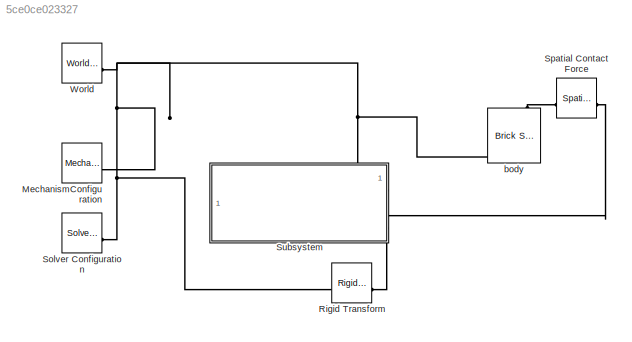
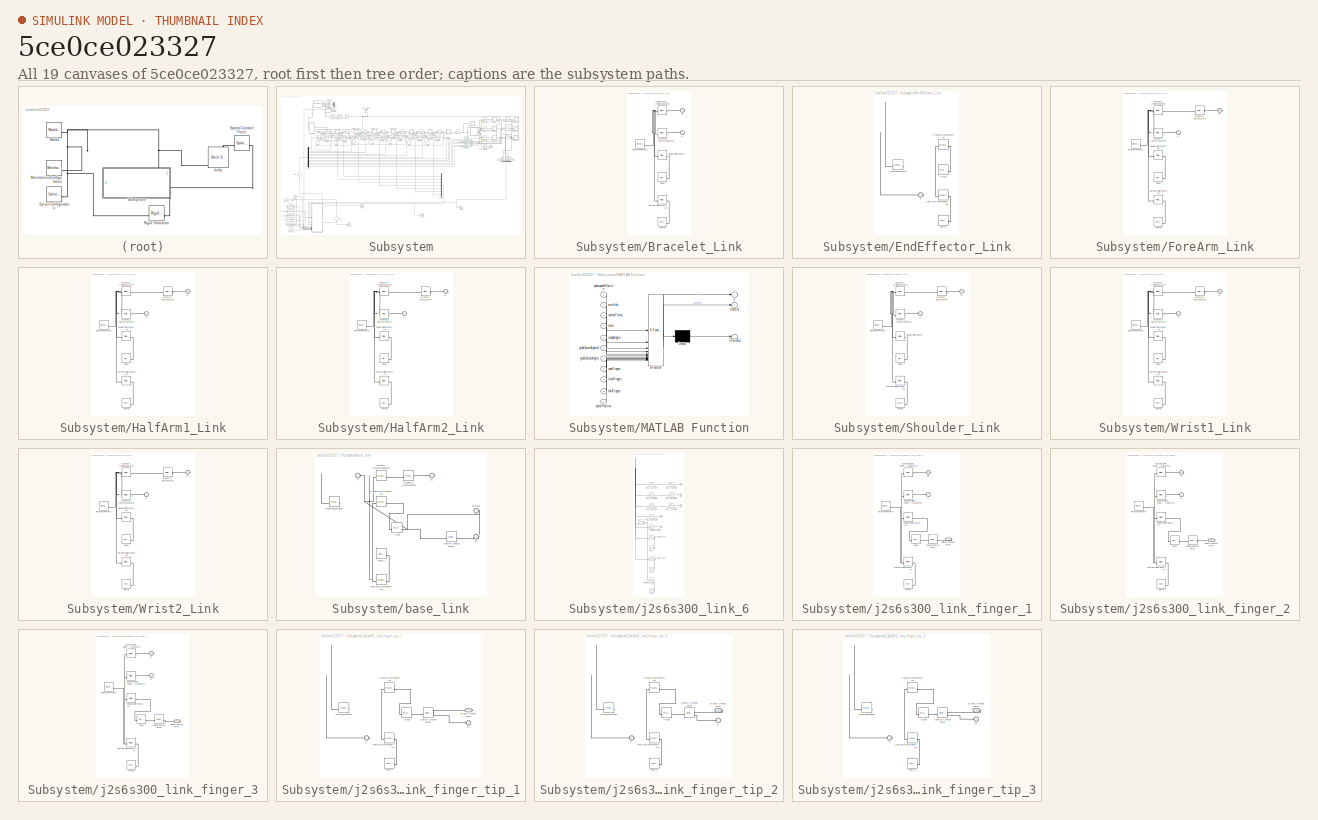
[diagram: thumbnail index - all 19 canvases of the model, root first then tree order]
MODEL slx_5ce0ce023327
KIND model
CONFIG AbsTol = auto
CONFIG EnableMultiTasking = off
CONFIG FixedStep = 0.01
CONFIG MaxStep = 0.01
CONFIG MinStep = auto
CONFIG RelTol = 1e-3
CONFIG SampleTimeConstraint = Unconstrained
CONFIG SolverName = VariableStepAuto
CONFIG StartTime = 0.0
CONFIG StopTime = 45
BLOCK [Reference] MechanismConfiguration  REF=sm_lib/Utilities/Mechanism
Configuration
  SourceBlock = sm_lib/Utilities/Mechanism\nConfiguration
  SourceType = Mechanism\nConfiguration
BLOCK [Reference] Rigid Transform  REF=sm_lib/Frames and
Transforms/Rigid
Transform
  SourceBlock = sm_lib/Frames and\nTransforms/Rigid\nTransform
  SourceType = Rigid\nTransform
BLOCK [Reference] Solver Configuration  REF=nesl_utility/Solver
Configuration
  SourceBlock = nesl_utility/Solver\nConfiguration
  SourceType = Solver\nConfiguration
BLOCK [Reference] Spatial Contact Force  REF=sm_lib/Forces and
Torques/Spatial
Contact Force
  SourceBlock = sm_lib/Forces and\nTorques/Spatial\nContact Force
  SourceType = Spatial\nContact Force
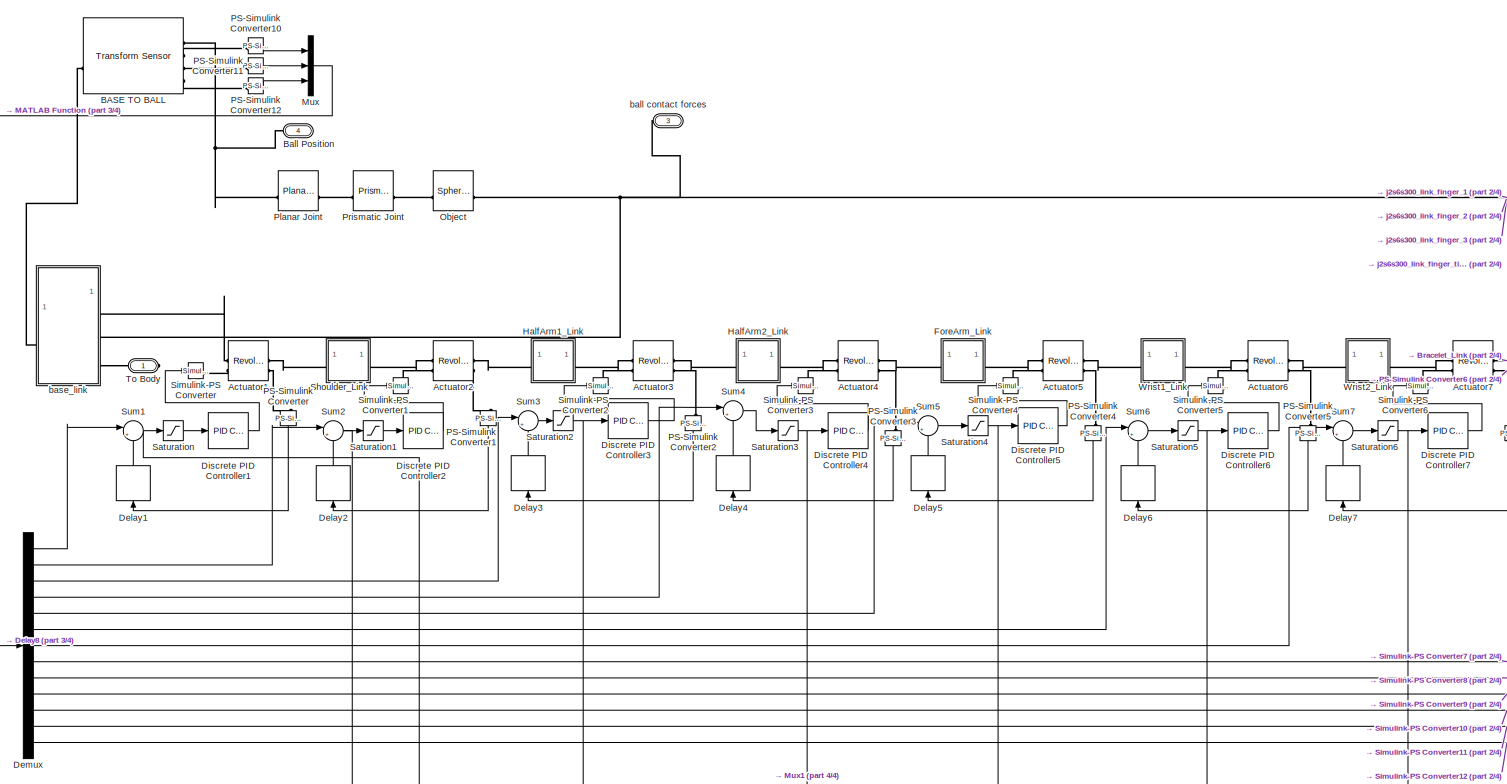
[diagram: Subsystem - part 1/4, top center region]
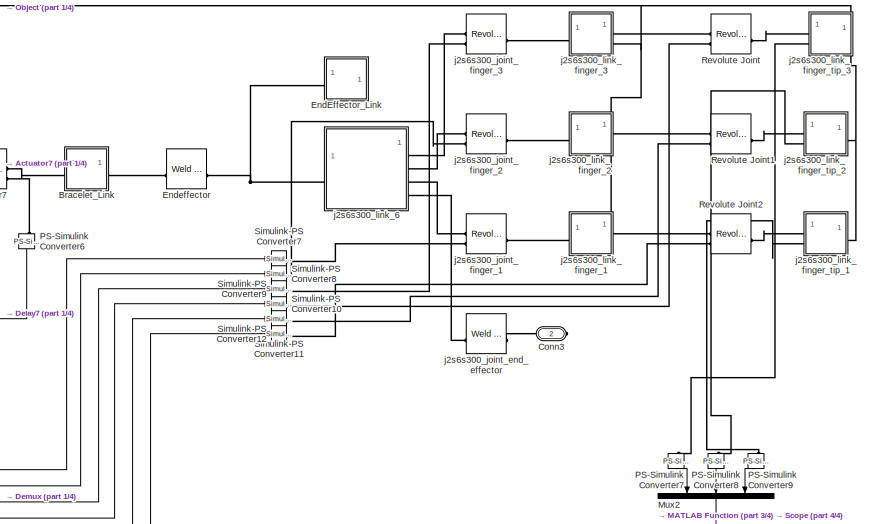
[diagram: Subsystem - part 2/4, top right region]
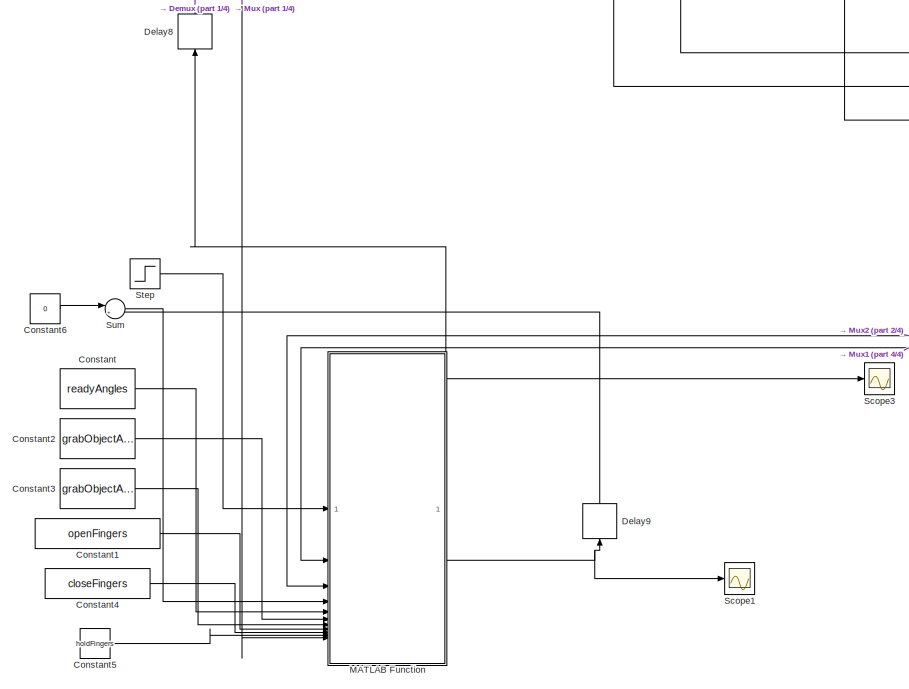
[diagram: Subsystem - part 3/4, bottom left region]
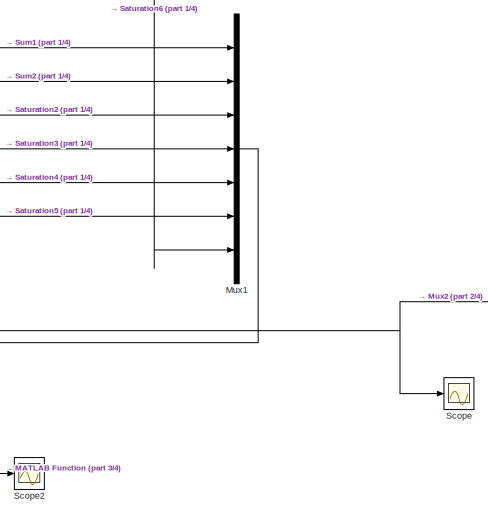
[diagram: Subsystem - part 4/4, bottom right region]
BLOCK [SubSystem] Subsystem
BLOCK [Reference] Subsystem/Actuator1  REF=sm_lib/Joints/Revolute Joint
  SourceBlock = sm_lib/Joints/Revolute Joint
  SourceType = Revolute Joint
BLOCK [Reference] Subsystem/Actuator2  REF=sm_lib/Joints/Revolute Joint
  SourceBlock = sm_lib/Joints/Revolute Joint
  SourceType = Revolute Joint
BLOCK [Reference] Subsystem/Actuator3  REF=sm_lib/Joints/Revolute Joint
  SourceBlock = sm_lib/Joints/Revolute Joint
  SourceType = Revolute Joint
BLOCK [Reference] Subsystem/Actuator4  REF=sm_lib/Joints/Revolute Joint
  SourceBlock = sm_lib/Joints/Revolute Joint
  SourceType = Revolute Joint
BLOCK [Reference] Subsystem/Actuator5  REF=sm_lib/Joints/Revolute Joint
  SourceBlock = sm_lib/Joints/Revolute Joint
  SourceType = Revolute Joint
BLOCK [Reference] Subsystem/Actuator6  REF=sm_lib/Joints/Revolute Joint
  SourceBlock = sm_lib/Joints/Revolute Joint
  SourceType = Revolute Joint
BLOCK [Reference] Subsystem/Actuator7  REF=sm_lib/Joints/Revolute Joint
  SourceBlock = sm_lib/Joints/Revolute Joint
  SourceType = Revolute Joint
BLOCK [Reference] Subsystem/BASE TO BALL  REF=sm_lib/Frames and
Transforms/Transform
Sensor
  SourceBlock = sm_lib/Frames and\nTransforms/Transform\nSensor
  SourceType = Transform\nSensor
BLOCK [PMIOPort] Subsystem/Ball Position
  Port = 4
  Side = Right
BLOCK [SubSystem] Subsystem/Bracelet_Link
BLOCK [Reference] Subsystem/Bracelet_Link/Actuator7_AxisInvTransform  REF=sm_lib/Frames and
Transforms/Rigid
Transform
  SourceBlock = sm_lib/Frames and\nTransforms/Rigid\nTransform
  SourceType = Rigid\nTransform
BLOCK [Reference] Subsystem/Bracelet_Link/Endeffector_OriginTransform  REF=sm_lib/Frames and
Transforms/Rigid
Transform
  SourceBlock = sm_lib/Frames and\nTransforms/Rigid\nTransform
  SourceType = Rigid\nTransform
BLOCK [PMIOPort] Subsystem/Bracelet_Link/F
  Side = Left
BLOCK [PMIOPort] Subsystem/Bracelet_Link/F1
  Port = 2
  Side = Right
BLOCK [Reference] Subsystem/Bracelet_Link/Inertia  REF=sm_lib/Body Elements/Inertia
  SourceBlock = sm_lib/Body Elements/Inertia
  SourceType = Inertia
BLOCK [Reference] Subsystem/Bracelet_Link/InertiaOriginTransform  REF=sm_lib/Frames and
Transforms/Rigid
Transform
  SourceBlock = sm_lib/Frames and\nTransforms/Rigid\nTransform
  SourceType = Rigid\nTransform
BLOCK [Reference] Subsystem/Bracelet_Link/ReferenceFrame  REF=sm_lib/Frames and
Transforms/Reference
Frame
  SourceBlock = sm_lib/Frames and\nTransforms/Reference\nFrame
  SourceType = Reference\nFrame
BLOCK [Reference] Subsystem/Bracelet_Link/Visual  REF=sm_lib/Body Elements/File Solid
  SourceBlock = sm_lib/Body Elements/File Solid
  SourceType = File Solid
BLOCK [Reference] Subsystem/Bracelet_Link/VisualOriginTransform  REF=sm_lib/Frames and
Transforms/Rigid
Transform
  SourceBlock = sm_lib/Frames and\nTransforms/Rigid\nTransform
  SourceType = Rigid\nTransform
BLOCK [PMIOPort] Subsystem/Conn3
  Port = 2
  Side = Right
BLOCK [Constant] Subsystem/Constant
  SampleTime = -1
  Value = readyAngles
BLOCK [Constant] Subsystem/Constant1
  SampleTime = -1
  Value = openFingers
BLOCK [Constant] Subsystem/Constant2
  SampleTime = -1
  Value = grabObjectAngles2
BLOCK [Constant] Subsystem/Constant3
  SampleTime = -1
  Value = grabObjectAngles
BLOCK [Constant] Subsystem/Constant4
  Value = closeFingers
BLOCK [Constant] Subsystem/Constant5
  Value = holdFingers
BLOCK [Constant] Subsystem/Constant6
  Value = 0
BLOCK [Delay] Subsystem/Delay1
  DelayLength = 1
  InitialCondition = 0
  InputPortMap = u0
  NameLocation = right
BLOCK [Delay] Subsystem/Delay2
  DelayLength = 1
  InitialCondition = 0
  InputPortMap = u0
  NameLocation = right
BLOCK [Delay] Subsystem/Delay3
  DelayLength = 1
  InitialCondition = 0
  InputPortMap = u0
  NameLocation = right
BLOCK [Delay] Subsystem/Delay4
  DelayLength = 1
  InitialCondition = 0
  InputPortMap = u0
  NameLocation = right
BLOCK [Delay] Subsystem/Delay5
  DelayLength = 1
  InitialCondition = 0
  InputPortMap = u0
  NameLocation = right
BLOCK [Delay] Subsystem/Delay6
  DelayLength = 1
  InitialCondition = 0
  InputPortMap = u0
  NameLocation = right
BLOCK [Delay] Subsystem/Delay7
  DelayLength = 1
  InitialCondition = 0
  InputPortMap = u0
  NameLocation = right
BLOCK [Delay] Subsystem/Delay8
  DelayLength = 1
  InitialCondition = 0
  InputPortMap = u0
  NameLocation = right
BLOCK [Delay] Subsystem/Delay9
  DelayLength = 1
  InitialCondition = 0
  InputPortMap = u0
  NameLocation = right
BLOCK [Demux] Subsystem/Demux
  Outputs = 13
BLOCK [Reference] Subsystem/Discrete PID Controller1  REF=slpidlib/PID Controller
  SourceBlock = slpidlib/PID Controller
  SourceType = PID 1dof
BLOCK [Reference] Subsystem/Discrete PID Controller2  REF=slpidlib/PID Controller
  SourceBlock = slpidlib/PID Controller
  SourceType = PID 1dof
BLOCK [Reference] Subsystem/Discrete PID Controller3  REF=slpidlib/PID Controller
  SourceBlock = slpidlib/PID Controller
  SourceType = PID 1dof
BLOCK [Reference] Subsystem/Discrete PID Controller4  REF=slpidlib/PID Controller
  SourceBlock = slpidlib/PID Controller
  SourceType = PID 1dof
BLOCK [Reference] Subsystem/Discrete PID Controller5  REF=slpidlib/PID Controller
  SourceBlock = slpidlib/PID Controller
  SourceType = PID 1dof
BLOCK [Reference] Subsystem/Discrete PID Controller6  REF=slpidlib/PID Controller
  SourceBlock = slpidlib/PID Controller
  SourceType = PID 1dof
BLOCK [Reference] Subsystem/Discrete PID Controller7  REF=slpidlib/PID Controller
  SourceBlock = slpidlib/PID Controller
  SourceType = PID 1dof
BLOCK [SubSystem] Subsystem/EndEffector_Link
BLOCK [PMIOPort] Subsystem/EndEffector_Link/F
  Side = Left
BLOCK [Reference] Subsystem/EndEffector_Link/Inertia  REF=sm_lib/Body Elements/Inertia
  SourceBlock = sm_lib/Body Elements/Inertia
  SourceType = Inertia
BLOCK [Reference] Subsystem/EndEffector_Link/InertiaOriginTransform  REF=sm_lib/Frames and
Transforms/Rigid
Transform
  SourceBlock = sm_lib/Frames and\nTransforms/Rigid\nTransform
  SourceType = Rigid\nTransform
BLOCK [Reference] Subsystem/EndEffector_Link/ReferenceFrame  REF=sm_lib/Frames and
Transforms/Reference
Frame
  SourceBlock = sm_lib/Frames and\nTransforms/Reference\nFrame
  SourceType = Reference\nFrame
BLOCK [Reference] Subsystem/EndEffector_Link/Visual  REF=sm_lib/Body Elements/File Solid
  SourceBlock = sm_lib/Body Elements/File Solid
  SourceType = File Solid
BLOCK [Reference] Subsystem/EndEffector_Link/VisualOriginTransform  REF=sm_lib/Frames and
Transforms/Rigid
Transform
  SourceBlock = sm_lib/Frames and\nTransforms/Rigid\nTransform
  SourceType = Rigid\nTransform
BLOCK [Reference] Subsystem/Endeffector  REF=sm_lib/Joints/Weld Joint
  SourceBlock = sm_lib/Joints/Weld Joint
  SourceType = Weld Joint
BLOCK [SubSystem] Subsystem/ForeArm_Link
BLOCK [Reference] Subsystem/ForeArm_Link/Actuator4_AxisInvTransform  REF=sm_lib/Frames and
Transforms/Rigid
Transform
  SourceBlock = sm_lib/Frames and\nTransforms/Rigid\nTransform
  SourceType = Rigid\nTransform
BLOCK [Reference] Subsystem/ForeArm_Link/Actuator5_AxisTransform  REF=sm_lib/Frames and
Transforms/Rigid
Transform
  SourceBlock = sm_lib/Frames and\nTransforms/Rigid\nTransform
  SourceType = Rigid\nTransform
BLOCK [Reference] Subsystem/ForeArm_Link/Actuator5_OriginTransform  REF=sm_lib/Frames and
Transforms/Rigid
Transform
  SourceBlock = sm_lib/Frames and\nTransforms/Rigid\nTransform
  SourceType = Rigid\nTransform
BLOCK [PMIOPort] Subsystem/ForeArm_Link/F
  Side = Left
BLOCK [PMIOPort] Subsystem/ForeArm_Link/F1
  Port = 2
  Side = Right
BLOCK [Reference] Subsystem/ForeArm_Link/Inertia  REF=sm_lib/Body Elements/Inertia
  SourceBlock = sm_lib/Body Elements/Inertia
  SourceType = Inertia
BLOCK [Reference] Subsystem/ForeArm_Link/InertiaOriginTransform  REF=sm_lib/Frames and
Transforms/Rigid
Transform
  SourceBlock = sm_lib/Frames and\nTransforms/Rigid\nTransform
  SourceType = Rigid\nTransform
BLOCK [Reference] Subsystem/ForeArm_Link/ReferenceFrame  REF=sm_lib/Frames and
Transforms/Reference
Frame
  SourceBlock = sm_lib/Frames and\nTransforms/Reference\nFrame
  SourceType = Reference\nFrame
BLOCK [Reference] Subsystem/ForeArm_Link/Visual  REF=sm_lib/Body Elements/File Solid
  SourceBlock = sm_lib/Body Elements/File Solid
  SourceType = File Solid
BLOCK [Reference] Subsystem/ForeArm_Link/VisualOriginTransform  REF=sm_lib/Frames and
Transforms/Rigid
Transform
  SourceBlock = sm_lib/Frames and\nTransforms/Rigid\nTransform
  SourceType = Rigid\nTransform
BLOCK [SubSystem] Subsystem/HalfArm1_Link
BLOCK [Reference] Subsystem/HalfArm1_Link/Actuator2_AxisInvTransform  REF=sm_lib/Frames and
Transforms/Rigid
Transform
  SourceBlock = sm_lib/Frames and\nTransforms/Rigid\nTransform
  SourceType = Rigid\nTransform
BLOCK [Reference] Subsystem/HalfArm1_Link/Actuator3_AxisTransform  REF=sm_lib/Frames and
Transforms/Rigid
Transform
  SourceBlock = sm_lib/Frames and\nTransforms/Rigid\nTransform
  SourceType = Rigid\nTransform
BLOCK [Reference] Subsystem/HalfArm1_Link/Actuator3_OriginTransform  REF=sm_lib/Frames and
Transforms/Rigid
Transform
  SourceBlock = sm_lib/Frames and\nTransforms/Rigid\nTransform
  SourceType = Rigid\nTransform
BLOCK [PMIOPort] Subsystem/HalfArm1_Link/F
  Side = Left
BLOCK [PMIOPort] Subsystem/HalfArm1_Link/F1
  Port = 2
  Side = Right
BLOCK [Reference] Subsystem/HalfArm1_Link/Inertia  REF=sm_lib/Body Elements/Inertia
  SourceBlock = sm_lib/Body Elements/Inertia
  SourceType = Inertia
BLOCK [Reference] Subsystem/HalfArm1_Link/InertiaOriginTransform  REF=sm_lib/Frames and
Transforms/Rigid
Transform
  SourceBlock = sm_lib/Frames and\nTransforms/Rigid\nTransform
  SourceType = Rigid\nTransform
BLOCK [Reference] Subsystem/HalfArm1_Link/ReferenceFrame  REF=sm_lib/Frames and
Transforms/Reference
Frame
  SourceBlock = sm_lib/Frames and\nTransforms/Reference\nFrame
  SourceType = Reference\nFrame
BLOCK [Reference] Subsystem/HalfArm1_Link/Visual  REF=sm_lib/Body Elements/File Solid
  SourceBlock = sm_lib/Body Elements/File Solid
  SourceType = File Solid
BLOCK [Reference] Subsystem/HalfArm1_Link/VisualOriginTransform  REF=sm_lib/Frames and
Transforms/Rigid
Transform
  SourceBlock = sm_lib/Frames and\nTransforms/Rigid\nTransform
  SourceType = Rigid\nTransform
BLOCK [SubSystem] Subsystem/HalfArm2_Link
BLOCK [Reference] Subsystem/HalfArm2_Link/Actuator3_AxisInvTransform  REF=sm_lib/Frames and
Transforms/Rigid
Transform
  SourceBlock = sm_lib/Frames and\nTransforms/Rigid\nTransform
  SourceType = Rigid\nTransform
BLOCK [Reference] Subsystem/HalfArm2_Link/Actuator4_AxisTransform  REF=sm_lib/Frames and
Transforms/Rigid
Transform
  SourceBlock = sm_lib/Frames and\nTransforms/Rigid\nTransform
  SourceType = Rigid\nTransform
BLOCK [Reference] Subsystem/HalfArm2_Link/Actuator4_OriginTransform  REF=sm_lib/Frames and
Transforms/Rigid
Transform
  SourceBlock = sm_lib/Frames and\nTransforms/Rigid\nTransform
  SourceType = Rigid\nTransform
BLOCK [PMIOPort] Subsystem/HalfArm2_Link/F
  Side = Left
BLOCK [PMIOPort] Subsystem/HalfArm2_Link/F1
  Port = 2
  Side = Right
BLOCK [Reference] Subsystem/HalfArm2_Link/Inertia  REF=sm_lib/Body Elements/Inertia
  SourceBlock = sm_lib/Body Elements/Inertia
  SourceType = Inertia
BLOCK [Reference] Subsystem/HalfArm2_Link/InertiaOriginTransform  REF=sm_lib/Frames and
Transforms/Rigid
Transform
  SourceBlock = sm_lib/Frames and\nTransforms/Rigid\nTransform
  SourceType = Rigid\nTransform
BLOCK [Reference] Subsystem/HalfArm2_Link/ReferenceFrame  REF=sm_lib/Frames and
Transforms/Reference
Frame
  SourceBlock = sm_lib/Frames and\nTransforms/Reference\nFrame
  SourceType = Reference\nFrame
BLOCK [Reference] Subsystem/HalfArm2_Link/Visual  REF=sm_lib/Body Elements/File Solid
  SourceBlock = sm_lib/Body Elements/File Solid
  SourceType = File Solid
BLOCK [Reference] Subsystem/HalfArm2_Link/VisualOriginTransform  REF=sm_lib/Frames and
Transforms/Rigid
Transform
  SourceBlock = sm_lib/Frames and\nTransforms/Rigid\nTransform
  SourceType = Rigid\nTransform
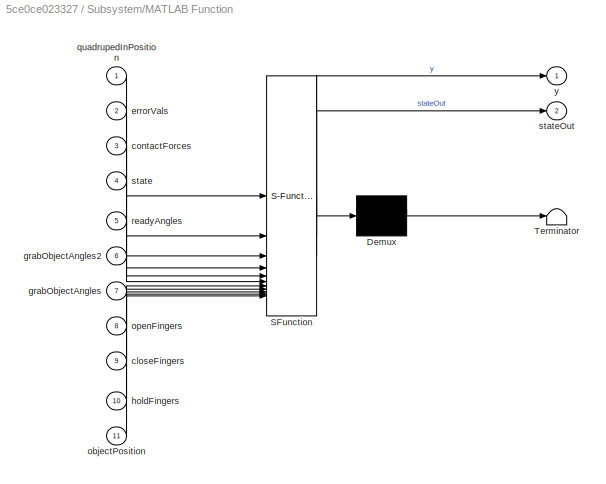
BLOCK [SubSystem] Subsystem/MATLAB Function
  ErrorFcn = Stateflow.Translate.translate
  PermitHierarchicalResolution = ExplicitOnly
  SFBlockType = MATLAB Function
  TreatAsAtomicUnit = on
BLOCK [Demux] Subsystem/MATLAB Function/ Demux 
  Outputs = 1
BLOCK [S-Function] Subsystem/MATLAB Function/ SFunction 
  EnableBusSupport = on
  FunctionName = sf_sfun
  PortCounts = [11 3]
  SFcnIsStateOwnerBlock = off
  SFunctionDeploymentMode = off
  Tag = Stateflow S-Function 2
BLOCK [Terminator] Subsystem/MATLAB Function/ Terminator 
BLOCK [Inport] Subsystem/MATLAB Function/closeFingers
  Port = 9
BLOCK [Inport] Subsystem/MATLAB Function/contactForces
  Port = 3
BLOCK [Inport] Subsystem/MATLAB Function/errorVals
  Port = 2
BLOCK [Inport] Subsystem/MATLAB Function/grabObjectAngles
  Port = 7
BLOCK [Inport] Subsystem/MATLAB Function/grabObjectAngles2
  Port = 6
BLOCK [Inport] Subsystem/MATLAB Function/holdFingers
  Port = 10
BLOCK [Inport] Subsystem/MATLAB Function/objectPosition
  Port = 11
BLOCK [Inport] Subsystem/MATLAB Function/openFingers
  Port = 8
BLOCK [Inport] Subsystem/MATLAB Function/quadrupedInPosition
BLOCK [Inport] Subsystem/MATLAB Function/readyAngles
  Port = 5
BLOCK [Inport] Subsystem/MATLAB Function/state
  Port = 4
BLOCK [Outport] Subsystem/MATLAB Function/stateOut
  Port = 2
BLOCK [Outport] Subsystem/MATLAB Function/y
BLOCK [Mux] Subsystem/Mux
  DisplayOption = bar
  Inputs = 3
BLOCK [Mux] Subsystem/Mux1
  DisplayOption = bar
  Inputs = 7
BLOCK [Mux] Subsystem/Mux2
  DisplayOption = bar
  Inputs = 3
BLOCK [Reference] Subsystem/Object  REF=sm_lib/Body Elements/Spherical Solid
  SourceBlock = sm_lib/Body Elements/Spherical Solid
  SourceType = Spherical Solid
BLOCK [Reference] Subsystem/PS-Simulink Converter  REF=nesl_utility/PS-Simulink
Converter
  NameLocation = left
  SourceBlock = nesl_utility/PS-Simulink\nConverter
  SourceType = PS-Simulink\nConverter
BLOCK [Reference] Subsystem/PS-Simulink Converter1  REF=nesl_utility/PS-Simulink
Converter
  NameLocation = left
  SourceBlock = nesl_utility/PS-Simulink\nConverter
  SourceType = PS-Simulink\nConverter
BLOCK [Reference] Subsystem/PS-Simulink Converter10  REF=nesl_utility/PS-Simulink
Converter
  SourceBlock = nesl_utility/PS-Simulink\nConverter
  SourceType = PS-Simulink\nConverter
BLOCK [Reference] Subsystem/PS-Simulink Converter11  REF=nesl_utility/PS-Simulink
Converter
  SourceBlock = nesl_utility/PS-Simulink\nConverter
  SourceType = PS-Simulink\nConverter
BLOCK [Reference] Subsystem/PS-Simulink Converter12  REF=nesl_utility/PS-Simulink
Converter
  SourceBlock = nesl_utility/PS-Simulink\nConverter
  SourceType = PS-Simulink\nConverter
BLOCK [Reference] Subsystem/PS-Simulink Converter2  REF=nesl_utility/PS-Simulink
Converter
  NameLocation = left
  SourceBlock = nesl_utility/PS-Simulink\nConverter
  SourceType = PS-Simulink\nConverter
BLOCK [Reference] Subsystem/PS-Simulink Converter3  REF=nesl_utility/PS-Simulink
Converter
  NameLocation = left
  SourceBlock = nesl_utility/PS-Simulink\nConverter
  SourceType = PS-Simulink\nConverter
BLOCK [Reference] Subsystem/PS-Simulink Converter4  REF=nesl_utility/PS-Simulink
Converter
  NameLocation = left
  SourceBlock = nesl_utility/PS-Simulink\nConverter
  SourceType = PS-Simulink\nConverter
BLOCK [Reference] Subsystem/PS-Simulink Converter5  REF=nesl_utility/PS-Simulink
Converter
  NameLocation = left
  SourceBlock = nesl_utility/PS-Simulink\nConverter
  SourceType = PS-Simulink\nConverter
BLOCK [Reference] Subsystem/PS-Simulink Converter6  REF=nesl_utility/PS-Simulink
Converter
  NameLocation = left
  SourceBlock = nesl_utility/PS-Simulink\nConverter
  SourceType = PS-Simulink\nConverter
BLOCK [Reference] Subsystem/PS-Simulink Converter7  REF=nesl_utility/PS-Simulink
Converter
  NameLocation = left
  SourceBlock = nesl_utility/PS-Simulink\nConverter
  SourceType = PS-Simulink\nConverter
BLOCK [Reference] Subsystem/PS-Simulink Converter8  REF=nesl_utility/PS-Simulink
Converter
  NameLocation = right
  SourceBlock = nesl_utility/PS-Simulink\nConverter
  SourceType = PS-Simulink\nConverter
BLOCK [Reference] Subsystem/PS-Simulink Converter9  REF=nesl_utility/PS-Simulink
Converter
  NameLocation = left
  SourceBlock = nesl_utility/PS-Simulink\nConverter
  SourceType = PS-Simulink\nConverter
BLOCK [Reference] Subsystem/Planar Joint  REF=sm_lib/Joints/Planar Joint
  SourceBlock = sm_lib/Joints/Planar Joint
  SourceType = Planar Joint
BLOCK [Reference] Subsystem/Prismatic Joint  REF=sm_lib/Joints/Prismatic
Joint
  SourceBlock = sm_lib/Joints/Prismatic\nJoint
  SourceType = Prismatic\nJoint
BLOCK [Reference] Subsystem/Revolute Joint  REF=sm_lib/Joints/Revolute Joint
  SourceBlock = sm_lib/Joints/Revolute Joint
  SourceType = Revolute Joint
BLOCK [Reference] Subsystem/Revolute Joint1  REF=sm_lib/Joints/Revolute Joint
  SourceBlock = sm_lib/Joints/Revolute Joint
  SourceType = Revolute Joint
BLOCK [Reference] Subsystem/Revolute Joint2  REF=sm_lib/Joints/Revolute Joint
  SourceBlock = sm_lib/Joints/Revolute Joint
  SourceType = Revolute Joint
BLOCK [Saturate] Subsystem/Saturation
BLOCK [Saturate] Subsystem/Saturation1
BLOCK [Saturate] Subsystem/Saturation2
BLOCK [Saturate] Subsystem/Saturation3
BLOCK [Saturate] Subsystem/Saturation4
BLOCK [Saturate] Subsystem/Saturation5
BLOCK [Saturate] Subsystem/Saturation6
BLOCK [Scope] Subsystem/Scope
  Floating = off
  NumInputPorts = 1
  ScopeSpecificationString = Simulink.scopes.TimeScopeBlockCfg('CurrentConfiguration', extmgr.ConfigurationSet(extmgr.Configuration('Core','General UI',true),extmgr.Configuration('Core','Source UI',true),extmgr.Configuration('Sources','WiredSimulink',true),extmgr.Configuration('Visuals','Time Domain',true,'SerializedDisplays',{struct('MinYLimReal','-31.15334','MaxYLimReal','280.38008','YLabelReal','','MinYLimMag','0.00000','M...<+1446ch>
BLOCK [Scope] Subsystem/Scope1
  Floating = off
  NumInputPorts = 1
  ScopeSpecificationString = Simulink.scopes.TimeScopeBlockCfg('CurrentConfiguration', extmgr.ConfigurationSet(extmgr.Configuration('Core','General UI',true),extmgr.Configuration('Core','Source UI',true),extmgr.Configuration('Sources','WiredSimulink',true,'DataLoggingVariableName','ScopeData1'),extmgr.Configuration('Visuals','Time Domain',true,'SerializedDisplays',{struct('MinYLimReal','0.93562','MaxYLimReal','3.06075','YLabe...<+1433ch>
BLOCK [Scope] Subsystem/Scope2
  Floating = off
  NumInputPorts = 1
  ScopeSpecificationString = Simulink.scopes.TimeScopeBlockCfg('CurrentConfiguration', extmgr.ConfigurationSet(extmgr.Configuration('Core','General UI',true),extmgr.Configuration('Core','Source UI',true),extmgr.Configuration('Sources','WiredSimulink',true,'DataLoggingVariableName','ScopeData2'),extmgr.Configuration('Visuals','Time Domain',true,'SerializedDisplays',{struct('MinYLimReal','-0.36305','MaxYLimReal','0.34703','YLab...<+1490ch>
BLOCK [Scope] Subsystem/Scope3
  Floating = off
  NumInputPorts = 1
  ScopeSpecificationString = Simulink.scopes.TimeScopeBlockCfg('CurrentConfiguration', extmgr.ConfigurationSet(extmgr.Configuration('Core','General UI',true),extmgr.Configuration('Core','Source UI',true),extmgr.Configuration('Sources','WiredSimulink',true,'DataLoggingVariableName','ScopeData3'),extmgr.Configuration('Visuals','Time Domain',true),extmgr.Configuration('Tools','Plot Navigation',true),extmgr.Configuration('Tools',...<+40ch>
BLOCK [SubSystem] Subsystem/Shoulder_Link
BLOCK [Reference] Subsystem/Shoulder_Link/Actuator1_AxisInvTransform  REF=sm_lib/Frames and
Transforms/Rigid
Transform
  SourceBlock = sm_lib/Frames and\nTransforms/Rigid\nTransform
  SourceType = Rigid\nTransform
BLOCK [Reference] Subsystem/Shoulder_Link/Actuator2_AxisTransform  REF=sm_lib/Frames and
Transforms/Rigid
Transform
  SourceBlock = sm_lib/Frames and\nTransforms/Rigid\nTransform
  SourceType = Rigid\nTransform
BLOCK [Reference] Subsystem/Shoulder_Link/Actuator2_OriginTransform  REF=sm_lib/Frames and
Transforms/Rigid
Transform
  SourceBlock = sm_lib/Frames and\nTransforms/Rigid\nTransform
  SourceType = Rigid\nTransform
BLOCK [PMIOPort] Subsystem/Shoulder_Link/F
  Side = Left
BLOCK [PMIOPort] Subsystem/Shoulder_Link/F1
  Port = 2
  Side = Right
BLOCK [Reference] Subsystem/Shoulder_Link/Inertia  REF=sm_lib/Body Elements/Inertia
  SourceBlock = sm_lib/Body Elements/Inertia
  SourceType = Inertia
BLOCK [Reference] Subsystem/Shoulder_Link/InertiaOriginTransform  REF=sm_lib/Frames and
Transforms/Rigid
Transform
  SourceBlock = sm_lib/Frames and\nTransforms/Rigid\nTransform
  SourceType = Rigid\nTransform
BLOCK [Reference] Subsystem/Shoulder_Link/ReferenceFrame  REF=sm_lib/Frames and
Transforms/Reference
Frame
  SourceBlock = sm_lib/Frames and\nTransforms/Reference\nFrame
  SourceType = Reference\nFrame
BLOCK [Reference] Subsystem/Shoulder_Link/Visual  REF=sm_lib/Body Elements/File Solid
  SourceBlock = sm_lib/Body Elements/File Solid
  SourceType = File Solid
BLOCK [Reference] Subsystem/Shoulder_Link/VisualOriginTransform  REF=sm_lib/Frames and
Transforms/Rigid
Transform
  SourceBlock = sm_lib/Frames and\nTransforms/Rigid\nTransform
  SourceType = Rigid\nTransform
BLOCK [Reference] Subsystem/Simulink-PS Converter  REF=nesl_utility/Simulink-PS
Converter
  SourceBlock = nesl_utility/Simulink-PS\nConverter
  SourceType = Simulink-PS\nConverter
BLOCK [Reference] Subsystem/Simulink-PS Converter1  REF=nesl_utility/Simulink-PS
Converter
  SourceBlock = nesl_utility/Simulink-PS\nConverter
  SourceType = Simulink-PS\nConverter
BLOCK [Reference] Subsystem/Simulink-PS Converter10  REF=nesl_utility/Simulink-PS
Converter
  SourceBlock = nesl_utility/Simulink-PS\nConverter
  SourceType = Simulink-PS\nConverter
BLOCK [Reference] Subsystem/Simulink-PS Converter11  REF=nesl_utility/Simulink-PS
Converter
  SourceBlock = nesl_utility/Simulink-PS\nConverter
  SourceType = Simulink-PS\nConverter
BLOCK [Reference] Subsystem/Simulink-PS Converter12  REF=nesl_utility/Simulink-PS
Converter
  SourceBlock = nesl_utility/Simulink-PS\nConverter
  SourceType = Simulink-PS\nConverter
BLOCK [Reference] Subsystem/Simulink-PS Converter2  REF=nesl_utility/Simulink-PS
Converter
  SourceBlock = nesl_utility/Simulink-PS\nConverter
  SourceType = Simulink-PS\nConverter
BLOCK [Reference] Subsystem/Simulink-PS Converter3  REF=nesl_utility/Simulink-PS
Converter
  SourceBlock = nesl_utility/Simulink-PS\nConverter
  SourceType = Simulink-PS\nConverter
BLOCK [Reference] Subsystem/Simulink-PS Converter4  REF=nesl_utility/Simulink-PS
Converter
  SourceBlock = nesl_utility/Simulink-PS\nConverter
  SourceType = Simulink-PS\nConverter
BLOCK [Reference] Subsystem/Simulink-PS Converter5  REF=nesl_utility/Simulink-PS
Converter
  SourceBlock = nesl_utility/Simulink-PS\nConverter
  SourceType = Simulink-PS\nConverter
BLOCK [Reference] Subsystem/Simulink-PS Converter6  REF=nesl_utility/Simulink-PS
Converter
  SourceBlock = nesl_utility/Simulink-PS\nConverter
  SourceType = Simulink-PS\nConverter
BLOCK [Reference] Subsystem/Simulink-PS Converter7  REF=nesl_utility/Simulink-PS
Converter
  SourceBlock = nesl_utility/Simulink-PS\nConverter
  SourceType = Simulink-PS\nConverter
BLOCK [Reference] Subsystem/Simulink-PS Converter8  REF=nesl_utility/Simulink-PS
Converter
  SourceBlock = nesl_utility/Simulink-PS\nConverter
  SourceType = Simulink-PS\nConverter
BLOCK [Reference] Subsystem/Simulink-PS Converter9  REF=nesl_utility/Simulink-PS
Converter
  SourceBlock = nesl_utility/Simulink-PS\nConverter
  SourceType = Simulink-PS\nConverter
BLOCK [Step] Subsystem/Step
  SampleTime = 0
BLOCK [Sum] Subsystem/Sum
  Inputs = |++
BLOCK [Sum] Subsystem/Sum1
  Inputs = |+-
BLOCK [Sum] Subsystem/Sum2
  Inputs = |+-
BLOCK [Sum] Subsystem/Sum3
  Inputs = |+-
BLOCK [Sum] Subsystem/Sum4
  Inputs = |+-
BLOCK [Sum] Subsystem/Sum5
  Inputs = |+-
BLOCK [Sum] Subsystem/Sum6
  Inputs = |+-
BLOCK [Sum] Subsystem/Sum7
  Inputs = |+-
BLOCK [PMIOPort] Subsystem/To Body
  Side = Right
BLOCK [SubSystem] Subsystem/Wrist1_Link
BLOCK [Reference] Subsystem/Wrist1_Link/Actuator5_AxisInvTransform  REF=sm_lib/Frames and
Transforms/Rigid
Transform
  SourceBlock = sm_lib/Frames and\nTransforms/Rigid\nTransform
  SourceType = Rigid\nTransform
BLOCK [Reference] Subsystem/Wrist1_Link/Actuator6_AxisTransform  REF=sm_lib/Frames and
Transforms/Rigid
Transform
  SourceBlock = sm_lib/Frames and\nTransforms/Rigid\nTransform
  SourceType = Rigid\nTransform
BLOCK [Reference] Subsystem/Wrist1_Link/Actuator6_OriginTransform  REF=sm_lib/Frames and
Transforms/Rigid
Transform
  SourceBlock = sm_lib/Frames and\nTransforms/Rigid\nTransform
  SourceType = Rigid\nTransform
BLOCK [PMIOPort] Subsystem/Wrist1_Link/F
  Side = Left
BLOCK [PMIOPort] Subsystem/Wrist1_Link/F1
  Port = 2
  Side = Right
BLOCK [Reference] Subsystem/Wrist1_Link/Inertia  REF=sm_lib/Body Elements/Inertia
  SourceBlock = sm_lib/Body Elements/Inertia
  SourceType = Inertia
BLOCK [Reference] Subsystem/Wrist1_Link/InertiaOriginTransform  REF=sm_lib/Frames and
Transforms/Rigid
Transform
  SourceBlock = sm_lib/Frames and\nTransforms/Rigid\nTransform
  SourceType = Rigid\nTransform
BLOCK [Reference] Subsystem/Wrist1_Link/ReferenceFrame  REF=sm_lib/Frames and
Transforms/Reference
Frame
  SourceBlock = sm_lib/Frames and\nTransforms/Reference\nFrame
  SourceType = Reference\nFrame
BLOCK [Reference] Subsystem/Wrist1_Link/Visual  REF=sm_lib/Body Elements/File Solid
  SourceBlock = sm_lib/Body Elements/File Solid
  SourceType = File Solid
BLOCK [Reference] Subsystem/Wrist1_Link/VisualOriginTransform  REF=sm_lib/Frames and
Transforms/Rigid
Transform
  SourceBlock = sm_lib/Frames and\nTransforms/Rigid\nTransform
  SourceType = Rigid\nTransform
BLOCK [SubSystem] Subsystem/Wrist2_Link
BLOCK [Reference] Subsystem/Wrist2_Link/Actuator6_AxisInvTransform  REF=sm_lib/Frames and
Transforms/Rigid
Transform
  SourceBlock = sm_lib/Frames and\nTransforms/Rigid\nTransform
  SourceType = Rigid\nTransform
BLOCK [Reference] Subsystem/Wrist2_Link/Actuator7_AxisTransform  REF=sm_lib/Frames and
Transforms/Rigid
Transform
  SourceBlock = sm_lib/Frames and\nTransforms/Rigid\nTransform
  SourceType = Rigid\nTransform
BLOCK [Reference] Subsystem/Wrist2_Link/Actuator7_OriginTransform  REF=sm_lib/Frames and
Transforms/Rigid
Transform
  SourceBlock = sm_lib/Frames and\nTransforms/Rigid\nTransform
  SourceType = Rigid\nTransform
BLOCK [PMIOPort] Subsystem/Wrist2_Link/F
  Side = Left
BLOCK [PMIOPort] Subsystem/Wrist2_Link/F1
  Port = 2
  Side = Right
BLOCK [Reference] Subsystem/Wrist2_Link/Inertia  REF=sm_lib/Body Elements/Inertia
  SourceBlock = sm_lib/Body Elements/Inertia
  SourceType = Inertia
BLOCK [Reference] Subsystem/Wrist2_Link/InertiaOriginTransform  REF=sm_lib/Frames and
Transforms/Rigid
Transform
  SourceBlock = sm_lib/Frames and\nTransforms/Rigid\nTransform
  SourceType = Rigid\nTransform
BLOCK [Reference] Subsystem/Wrist2_Link/ReferenceFrame  REF=sm_lib/Frames and
Transforms/Reference
Frame
  SourceBlock = sm_lib/Frames and\nTransforms/Reference\nFrame
  SourceType = Reference\nFrame
BLOCK [Reference] Subsystem/Wrist2_Link/Visual  REF=sm_lib/Body Elements/File Solid
  SourceBlock = sm_lib/Body Elements/File Solid
  SourceType = File Solid
BLOCK [Reference] Subsystem/Wrist2_Link/VisualOriginTransform  REF=sm_lib/Frames and
Transforms/Rigid
Transform
  SourceBlock = sm_lib/Frames and\nTransforms/Rigid\nTransform
  SourceType = Rigid\nTransform
BLOCK [PMIOPort] Subsystem/ball contact forces
  Port = 3
  Side = Right
BLOCK [SubSystem] Subsystem/base_link
BLOCK [Reference] Subsystem/base_link/Actuator1_AxisTransform  REF=sm_lib/Frames and
Transforms/Rigid
Transform
  SourceBlock = sm_lib/Frames and\nTransforms/Rigid\nTransform
  SourceType = Rigid\nTransform
BLOCK [Reference] Subsystem/base_link/Actuator1_OriginTransform  REF=sm_lib/Frames and
Transforms/Rigid
Transform
  SourceBlock = sm_lib/Frames and\nTransforms/Rigid\nTransform
  SourceType = Rigid\nTransform
BLOCK [PMIOPort] Subsystem/base_link/F
  Side = Left
BLOCK [PMIOPort] Subsystem/base_link/F1
  Port = 2
  Side = Right
BLOCK [PMIOPort] Subsystem/base_link/F2
  Port = 3
  Side = Right
BLOCK [Reference] Subsystem/base_link/Inertia  REF=sm_lib/Body Elements/Inertia
  SourceBlock = sm_lib/Body Elements/Inertia
  SourceType = Inertia
BLOCK [Reference] Subsystem/base_link/InertiaOriginTransform  REF=sm_lib/Frames and
Transforms/Rigid
Transform
  SourceBlock = sm_lib/Frames and\nTransforms/Rigid\nTransform
  SourceType = Rigid\nTransform
BLOCK [Reference] Subsystem/base_link/ReferenceFrame  REF=sm_lib/Frames and
Transforms/Reference
Frame
  SourceBlock = sm_lib/Frames and\nTransforms/Reference\nFrame
  SourceType = Reference\nFrame
BLOCK [Reference] Subsystem/base_link/Spatial Contact Force1  REF=sm_lib/Forces and
Torques/Spatial
Contact Force
  SourceBlock = sm_lib/Forces and\nTorques/Spatial\nContact Force
  SourceType = Spatial\nContact Force
BLOCK [PMIOPort] Subsystem/base_link/To Body
  Port = 4
  Side = Right
BLOCK [Reference] Subsystem/base_link/Visual  REF=sm_lib/Body Elements/File Solid
  SourceBlock = sm_lib/Body Elements/File Solid
  SourceType = File Solid
BLOCK [Reference] Subsystem/base_link/VisualOriginTransform  REF=sm_lib/Frames and
Transforms/Rigid
Transform
  SourceBlock = sm_lib/Frames and\nTransforms/Rigid\nTransform
  SourceType = Rigid\nTransform
BLOCK [Reference] Subsystem/j2s6s300_joint_end_effector  REF=sm_lib/Joints/Weld Joint
  SourceBlock = sm_lib/Joints/Weld Joint
  SourceType = Weld Joint
BLOCK [Reference] Subsystem/j2s6s300_joint_finger_1  REF=sm_lib/Joints/Revolute Joint
  SourceBlock = sm_lib/Joints/Revolute Joint
  SourceType = Revolute Joint
BLOCK [Reference] Subsystem/j2s6s300_joint_finger_2  REF=sm_lib/Joints/Revolute Joint
  SourceBlock = sm_lib/Joints/Revolute Joint
  SourceType = Revolute Joint
BLOCK [Reference] Subsystem/j2s6s300_joint_finger_3  REF=sm_lib/Joints/Revolute Joint
  SourceBlock = sm_lib/Joints/Revolute Joint
  SourceType = Revolute Joint
BLOCK [SubSystem] Subsystem/j2s6s300_link_6
BLOCK [PMIOPort] Subsystem/j2s6s300_link_6/F
  Side = Left
BLOCK [PMIOPort] Subsystem/j2s6s300_link_6/F1
  Port = 5
  Side = Right
BLOCK [PMIOPort] Subsystem/j2s6s300_link_6/F2
  Port = 4
  Side = Right
BLOCK [PMIOPort] Subsystem/j2s6s300_link_6/F3
  Port = 3
  Side = Right
BLOCK [PMIOPort] Subsystem/j2s6s300_link_6/F4
  Port = 2
  Side = Right
BLOCK [Reference] Subsystem/j2s6s300_link_6/Inertia  REF=sm_lib/Body Elements/Inertia
  SourceBlock = sm_lib/Body Elements/Inertia
  SourceType = Inertia
BLOCK [Reference] Subsystem/j2s6s300_link_6/InertiaOriginTransform  REF=sm_lib/Frames and
Transforms/Rigid
Transform
  SourceBlock = sm_lib/Frames and\nTransforms/Rigid\nTransform
  SourceType = Rigid\nTransform
BLOCK [Reference] Subsystem/j2s6s300_link_6/ReferenceFrame  REF=sm_lib/Frames and
Transforms/Reference
Frame
  SourceBlock = sm_lib/Frames and\nTransforms/Reference\nFrame
  SourceType = Reference\nFrame
BLOCK [Reference] Subsystem/j2s6s300_link_6/Visual  REF=sm_lib/Body Elements/File Solid
  SourceBlock = sm_lib/Body Elements/File Solid
  SourceType = File Solid
BLOCK [Reference] Subsystem/j2s6s300_link_6/Visual1  REF=sm_lib/Body Elements/File Solid
  SourceBlock = sm_lib/Body Elements/File Solid
  SourceType = File Solid
BLOCK [Reference] Subsystem/j2s6s300_link_6/VisualOrigin1Transform  REF=sm_lib/Frames and
Transforms/Rigid
Transform
  SourceBlock = sm_lib/Frames and\nTransforms/Rigid\nTransform
  SourceType = Rigid\nTransform
BLOCK [Reference] Subsystem/j2s6s300_link_6/VisualOriginTransform  REF=sm_lib/Frames and
Transforms/Rigid
Transform
  SourceBlock = sm_lib/Frames and\nTransforms/Rigid\nTransform
  SourceType = Rigid\nTransform
BLOCK [Reference] Subsystem/j2s6s300_link_6/j2s6s300_joint_6_AxisInvTransform  REF=sm_lib/Frames and
Transforms/Rigid
Transform
  SourceBlock = sm_lib/Frames and\nTransforms/Rigid\nTransform
  SourceType = Rigid\nTransform
BLOCK [Reference] Subsystem/j2s6s300_link_6/j2s6s300_joint_end_effector_OriginTransform  REF=sm_lib/Frames and
Transforms/Rigid
Transform
  SourceBlock = sm_lib/Frames and\nTransforms/Rigid\nTransform
  SourceType = Rigid\nTransform
BLOCK [Reference] Subsystem/j2s6s300_link_6/j2s6s300_joint_finger_1_AxisTransform  REF=sm_lib/Frames and
Transforms/Rigid
Transform
  SourceBlock = sm_lib/Frames and\nTransforms/Rigid\nTransform
  SourceType = Rigid\nTransform
BLOCK [Reference] Subsystem/j2s6s300_link_6/j2s6s300_joint_finger_1_OriginTransform  REF=sm_lib/Frames and
Transforms/Rigid
Transform
  SourceBlock = sm_lib/Frames and\nTransforms/Rigid\nTransform
  SourceType = Rigid\nTransform
BLOCK [Reference] Subsystem/j2s6s300_link_6/j2s6s300_joint_finger_2_AxisTransform  REF=sm_lib/Frames and
Transforms/Rigid
Transform
  SourceBlock = sm_lib/Frames and\nTransforms/Rigid\nTransform
  SourceType = Rigid\nTransform
BLOCK [Reference] Subsystem/j2s6s300_link_6/j2s6s300_joint_finger_2_OriginTransform  REF=sm_lib/Frames and
Transforms/Rigid
Transform
  SourceBlock = sm_lib/Frames and\nTransforms/Rigid\nTransform
  SourceType = Rigid\nTransform
BLOCK [Reference] Subsystem/j2s6s300_link_6/j2s6s300_joint_finger_3_AxisTransform  REF=sm_lib/Frames and
Transforms/Rigid
Transform
  SourceBlock = sm_lib/Frames and\nTransforms/Rigid\nTransform
  SourceType = Rigid\nTransform
BLOCK [Reference] Subsystem/j2s6s300_link_6/j2s6s300_joint_finger_3_OriginTransform  REF=sm_lib/Frames and
Transforms/Rigid
Transform
  SourceBlock = sm_lib/Frames and\nTransforms/Rigid\nTransform
  SourceType = Rigid\nTransform
BLOCK [SubSystem] Subsystem/j2s6s300_link_finger_1
BLOCK [PMIOPort] Subsystem/j2s6s300_link_finger_1/Block1 Contact Force
  Port = 3
  Side = Right
BLOCK [PMIOPort] Subsystem/j2s6s300_link_finger_1/F
  Side = Left
BLOCK [PMIOPort] Subsystem/j2s6s300_link_finger_1/F1
  Port = 2
  Side = Right
BLOCK [Reference] Subsystem/j2s6s300_link_finger_1/Inertia  REF=sm_lib/Body Elements/Inertia
  SourceBlock = sm_lib/Body Elements/Inertia
  SourceType = Inertia
BLOCK [Reference] Subsystem/j2s6s300_link_finger_1/InertiaOriginTransform  REF=sm_lib/Frames and
Transforms/Rigid
Transform
  SourceBlock = sm_lib/Frames and\nTransforms/Rigid\nTransform
  SourceType = Rigid\nTransform
BLOCK [Reference] Subsystem/j2s6s300_link_finger_1/ReferenceFrame  REF=sm_lib/Frames and
Transforms/Reference
Frame
  SourceBlock = sm_lib/Frames and\nTransforms/Reference\nFrame
  SourceType = Reference\nFrame
BLOCK [Reference] Subsystem/j2s6s300_link_finger_1/Spatial Contact Force  REF=sm_lib/Forces and
Torques/Spatial
Contact Force
  SourceBlock = sm_lib/Forces and\nTorques/Spatial\nContact Force
  SourceType = Spatial\nContact Force
BLOCK [Reference] Subsystem/j2s6s300_link_finger_1/Visual  REF=sm_lib/Body Elements/File Solid
  SourceBlock = sm_lib/Body Elements/File Solid
  SourceType = File Solid
BLOCK [Reference] Subsystem/j2s6s300_link_finger_1/VisualOriginTransform  REF=sm_lib/Frames and
Transforms/Rigid
Transform
  SourceBlock = sm_lib/Frames and\nTransforms/Rigid\nTransform
  SourceType = Rigid\nTransform
BLOCK [Reference] Subsystem/j2s6s300_link_finger_1/j2s6s300_joint_finger_1_AxisInvTransform  REF=sm_lib/Frames and
Transforms/Rigid
Transform
  SourceBlock = sm_lib/Frames and\nTransforms/Rigid\nTransform
  SourceType = Rigid\nTransform
BLOCK [Reference] Subsystem/j2s6s300_link_finger_1/j2s6s300_joint_finger_tip_1_OriginTransform  REF=sm_lib/Frames and
Transforms/Rigid
Transform
  SourceBlock = sm_lib/Frames and\nTransforms/Rigid\nTransform
  SourceType = Rigid\nTransform
BLOCK [SubSystem] Subsystem/j2s6s300_link_finger_2
BLOCK [PMIOPort] Subsystem/j2s6s300_link_finger_2/Block1 Contact Force
  Port = 3
  Side = Right
BLOCK [PMIOPort] Subsystem/j2s6s300_link_finger_2/F
  Side = Left
BLOCK [PMIOPort] Subsystem/j2s6s300_link_finger_2/F1
  Port = 2
  Side = Right
BLOCK [Reference] Subsystem/j2s6s300_link_finger_2/Inertia  REF=sm_lib/Body Elements/Inertia
  SourceBlock = sm_lib/Body Elements/Inertia
  SourceType = Inertia
BLOCK [Reference] Subsystem/j2s6s300_link_finger_2/InertiaOriginTransform  REF=sm_lib/Frames and
Transforms/Rigid
Transform
  SourceBlock = sm_lib/Frames and\nTransforms/Rigid\nTransform
  SourceType = Rigid\nTransform
BLOCK [Reference] Subsystem/j2s6s300_link_finger_2/ReferenceFrame  REF=sm_lib/Frames and
Transforms/Reference
Frame
  SourceBlock = sm_lib/Frames and\nTransforms/Reference\nFrame
  SourceType = Reference\nFrame
BLOCK [Reference] Subsystem/j2s6s300_link_finger_2/Spatial Contact Force  REF=sm_lib/Forces and
Torques/Spatial
Contact Force
  SourceBlock = sm_lib/Forces and\nTorques/Spatial\nContact Force
  SourceType = Spatial\nContact Force
BLOCK [Reference] Subsystem/j2s6s300_link_finger_2/Visual  REF=sm_lib/Body Elements/File Solid
  SourceBlock = sm_lib/Body Elements/File Solid
  SourceType = File Solid
BLOCK [Reference] Subsystem/j2s6s300_link_finger_2/VisualOriginTransform  REF=sm_lib/Frames and
Transforms/Rigid
Transform
  SourceBlock = sm_lib/Frames and\nTransforms/Rigid\nTransform
  SourceType = Rigid\nTransform
BLOCK [Reference] Subsystem/j2s6s300_link_finger_2/j2s6s300_joint_finger_2_AxisInvTransform  REF=sm_lib/Frames and
Transforms/Rigid
Transform
  SourceBlock = sm_lib/Frames and\nTransforms/Rigid\nTransform
  SourceType = Rigid\nTransform
BLOCK [Reference] Subsystem/j2s6s300_link_finger_2/j2s6s300_joint_finger_tip_2_OriginTransform  REF=sm_lib/Frames and
Transforms/Rigid
Transform
  SourceBlock = sm_lib/Frames and\nTransforms/Rigid\nTransform
  SourceType = Rigid\nTransform
BLOCK [SubSystem] Subsystem/j2s6s300_link_finger_3
BLOCK [PMIOPort] Subsystem/j2s6s300_link_finger_3/Block1 Contact Force
  Port = 3
  Side = Right
BLOCK [PMIOPort] Subsystem/j2s6s300_link_finger_3/F
  Side = Left
BLOCK [PMIOPort] Subsystem/j2s6s300_link_finger_3/F1
  Port = 2
  Side = Right
BLOCK [Reference] Subsystem/j2s6s300_link_finger_3/Inertia  REF=sm_lib/Body Elements/Inertia
  SourceBlock = sm_lib/Body Elements/Inertia
  SourceType = Inertia
BLOCK [Reference] Subsystem/j2s6s300_link_finger_3/InertiaOriginTransform  REF=sm_lib/Frames and
Transforms/Rigid
Transform
  SourceBlock = sm_lib/Frames and\nTransforms/Rigid\nTransform
  SourceType = Rigid\nTransform
BLOCK [Reference] Subsystem/j2s6s300_link_finger_3/ReferenceFrame  REF=sm_lib/Frames and
Transforms/Reference
Frame
  SourceBlock = sm_lib/Frames and\nTransforms/Reference\nFrame
  SourceType = Reference\nFrame
BLOCK [Reference] Subsystem/j2s6s300_link_finger_3/Spatial Contact Force  REF=sm_lib/Forces and
Torques/Spatial
Contact Force
  SourceBlock = sm_lib/Forces and\nTorques/Spatial\nContact Force
  SourceType = Spatial\nContact Force
BLOCK [Reference] Subsystem/j2s6s300_link_finger_3/Visual  REF=sm_lib/Body Elements/File Solid
  SourceBlock = sm_lib/Body Elements/File Solid
  SourceType = File Solid
BLOCK [Reference] Subsystem/j2s6s300_link_finger_3/VisualOriginTransform  REF=sm_lib/Frames and
Transforms/Rigid
Transform
  SourceBlock = sm_lib/Frames and\nTransforms/Rigid\nTransform
  SourceType = Rigid\nTransform
BLOCK [Reference] Subsystem/j2s6s300_link_finger_3/j2s6s300_joint_finger_3_AxisInvTransform  REF=sm_lib/Frames and
Transforms/Rigid
Transform
  SourceBlock = sm_lib/Frames and\nTransforms/Rigid\nTransform
  SourceType = Rigid\nTransform
BLOCK [Reference] Subsystem/j2s6s300_link_finger_3/j2s6s300_joint_finger_tip_3_OriginTransform  REF=sm_lib/Frames and
Transforms/Rigid
Transform
  SourceBlock = sm_lib/Frames and\nTransforms/Rigid\nTransform
  SourceType = Rigid\nTransform
BLOCK [SubSystem] Subsystem/j2s6s300_link_finger_tip_1
BLOCK [PMIOPort] Subsystem/j2s6s300_link_finger_tip_1/Block1 Contact Force
  Port = 2
  Side = Right
BLOCK [PMIOPort] Subsystem/j2s6s300_link_finger_tip_1/F
  Side = Left
BLOCK [PMIOPort] Subsystem/j2s6s300_link_finger_tip_1/F1
  Port = 3
  Side = Left
BLOCK [Reference] Subsystem/j2s6s300_link_finger_tip_1/Inertia  REF=sm_lib/Body Elements/Inertia
  SourceBlock = sm_lib/Body Elements/Inertia
  SourceType = Inertia
BLOCK [Reference] Subsystem/j2s6s300_link_finger_tip_1/InertiaOriginTransform  REF=sm_lib/Frames and
Transforms/Rigid
Transform
  SourceBlock = sm_lib/Frames and\nTransforms/Rigid\nTransform
  SourceType = Rigid\nTransform
BLOCK [Reference] Subsystem/j2s6s300_link_finger_tip_1/ReferenceFrame  REF=sm_lib/Frames and
Transforms/Reference
Frame
  SourceBlock = sm_lib/Frames and\nTransforms/Reference\nFrame
  SourceType = Reference\nFrame
BLOCK [Reference] Subsystem/j2s6s300_link_finger_tip_1/Spatial Contact Force  REF=sm_lib/Forces and
Torques/Spatial
Contact Force
  SourceBlock = sm_lib/Forces and\nTorques/Spatial\nContact Force
  SourceType = Spatial\nContact Force
BLOCK [Reference] Subsystem/j2s6s300_link_finger_tip_1/Visual  REF=sm_lib/Body Elements/File Solid
  SourceBlock = sm_lib/Body Elements/File Solid
  SourceType = File Solid
BLOCK [Reference] Subsystem/j2s6s300_link_finger_tip_1/VisualOriginTransform  REF=sm_lib/Frames and
Transforms/Rigid
Transform
  SourceBlock = sm_lib/Frames and\nTransforms/Rigid\nTransform
  SourceType = Rigid\nTransform
BLOCK [SubSystem] Subsystem/j2s6s300_link_finger_tip_2
BLOCK [PMIOPort] Subsystem/j2s6s300_link_finger_tip_2/Block1 Contact Force
  Port = 2
  Side = Right
BLOCK [PMIOPort] Subsystem/j2s6s300_link_finger_tip_2/F
  Side = Left
BLOCK [PMIOPort] Subsystem/j2s6s300_link_finger_tip_2/F1
  Port = 3
  Side = Left
BLOCK [Reference] Subsystem/j2s6s300_link_finger_tip_2/Inertia  REF=sm_lib/Body Elements/Inertia
  SourceBlock = sm_lib/Body Elements/Inertia
  SourceType = Inertia
BLOCK [Reference] Subsystem/j2s6s300_link_finger_tip_2/InertiaOriginTransform  REF=sm_lib/Frames and
Transforms/Rigid
Transform
  SourceBlock = sm_lib/Frames and\nTransforms/Rigid\nTransform
  SourceType = Rigid\nTransform
BLOCK [Reference] Subsystem/j2s6s300_link_finger_tip_2/ReferenceFrame  REF=sm_lib/Frames and
Transforms/Reference
Frame
  SourceBlock = sm_lib/Frames and\nTransforms/Reference\nFrame
  SourceType = Reference\nFrame
BLOCK [Reference] Subsystem/j2s6s300_link_finger_tip_2/Spatial Contact Force  REF=sm_lib/Forces and
Torques/Spatial
Contact Force
  SourceBlock = sm_lib/Forces and\nTorques/Spatial\nContact Force
  SourceType = Spatial\nContact Force
BLOCK [Reference] Subsystem/j2s6s300_link_finger_tip_2/Visual  REF=sm_lib/Body Elements/File Solid
  SourceBlock = sm_lib/Body Elements/File Solid
  SourceType = File Solid
BLOCK [Reference] Subsystem/j2s6s300_link_finger_tip_2/VisualOriginTransform  REF=sm_lib/Frames and
Transforms/Rigid
Transform
  SourceBlock = sm_lib/Frames and\nTransforms/Rigid\nTransform
  SourceType = Rigid\nTransform
BLOCK [SubSystem] Subsystem/j2s6s300_link_finger_tip_3
BLOCK [PMIOPort] Subsystem/j2s6s300_link_finger_tip_3/Block1 Contact Force
  Port = 2
  Side = Right
BLOCK [PMIOPort] Subsystem/j2s6s300_link_finger_tip_3/F
  Side = Left
BLOCK [PMIOPort] Subsystem/j2s6s300_link_finger_tip_3/F1
  Port = 3
  Side = Left
BLOCK [Reference] Subsystem/j2s6s300_link_finger_tip_3/Inertia  REF=sm_lib/Body Elements/Inertia
  SourceBlock = sm_lib/Body Elements/Inertia
  SourceType = Inertia
BLOCK [Reference] Subsystem/j2s6s300_link_finger_tip_3/InertiaOriginTransform  REF=sm_lib/Frames and
Transforms/Rigid
Transform
  SourceBlock = sm_lib/Frames and\nTransforms/Rigid\nTransform
  SourceType = Rigid\nTransform
BLOCK [Reference] Subsystem/j2s6s300_link_finger_tip_3/ReferenceFrame  REF=sm_lib/Frames and
Transforms/Reference
Frame
  SourceBlock = sm_lib/Frames and\nTransforms/Reference\nFrame
  SourceType = Reference\nFrame
BLOCK [Reference] Subsystem/j2s6s300_link_finger_tip_3/Spatial Contact Force  REF=sm_lib/Forces and
Torques/Spatial
Contact Force
  SourceBlock = sm_lib/Forces and\nTorques/Spatial\nContact Force
  SourceType = Spatial\nContact Force
BLOCK [Reference] Subsystem/j2s6s300_link_finger_tip_3/Visual  REF=sm_lib/Body Elements/File Solid
  SourceBlock = sm_lib/Body Elements/File Solid
  SourceType = File Solid
BLOCK [Reference] Subsystem/j2s6s300_link_finger_tip_3/VisualOriginTransform  REF=sm_lib/Frames and
Transforms/Rigid
Transform
  SourceBlock = sm_lib/Frames and\nTransforms/Rigid\nTransform
  SourceType = Rigid\nTransform
BLOCK [Reference] World  REF=sm_lib/Frames and
Transforms/World Frame
  SourceBlock = sm_lib/Frames and\nTransforms/World Frame
  SourceType = World Frame
BLOCK [Reference] body  REF=sm_lib/Body Elements/Brick Solid
  NameLocation = left
  SourceBlock = sm_lib/Body Elements/Brick Solid
  SourceType = Brick Solid
LINE Subsystem/Constant1:1 -> Subsystem/MATLAB Function:8
LINE Subsystem/Constant2:1 -> Subsystem/MATLAB Function:6
LINE Subsystem/Constant3:1 -> Subsystem/MATLAB Function:7
LINE Subsystem/Constant4:1 -> Subsystem/MATLAB Function:9
LINE Subsystem/Constant5:1 -> Subsystem/MATLAB Function:10
LINE Subsystem/Constant6:1 -> Subsystem/Sum:1
LINE Subsystem/Constant:1 -> Subsystem/MATLAB Function:5
LINE Subsystem/Delay1:1 -> Subsystem/Sum1:2
LINE Subsystem/Delay2:1 -> Subsystem/Sum2:2
LINE Subsystem/Delay3:1 -> Subsystem/Sum3:2
LINE Subsystem/Delay4:1 -> Subsystem/Sum4:2
LINE Subsystem/Delay5:1 -> Subsystem/Sum5:2
LINE Subsystem/Delay6:1 -> Subsystem/Sum6:2
LINE Subsystem/Delay7:1 -> Subsystem/Sum7:2
LINE Subsystem/Delay8:1 -> Subsystem/Demux:1
LINE Subsystem/Delay9:1 -> Subsystem/Sum:2
LINE Subsystem/Demux:1 -> Subsystem/Sum1:1
LINE Subsystem/Demux:10 -> Subsystem/Simulink-PS Converter9:1
LINE Subsystem/Demux:11 -> Subsystem/Simulink-PS Converter10:1
LINE Subsystem/Demux:12 -> Subsystem/Simulink-PS Converter11:1
LINE Subsystem/Demux:13 -> Subsystem/Simulink-PS Converter12:1
LINE Subsystem/Demux:2 -> Subsystem/Sum2:1
LINE Subsystem/Demux:3 -> Subsystem/Sum3:1
LINE Subsystem/Demux:4 -> Subsystem/Sum4:1
LINE Subsystem/Demux:5 -> Subsystem/Sum5:1
LINE Subsystem/Demux:6 -> Subsystem/Sum6:1
LINE Subsystem/Demux:7 -> Subsystem/Sum7:1
LINE Subsystem/Demux:8 -> Subsystem/Simulink-PS Converter7:1
LINE Subsystem/Demux:9 -> Subsystem/Simulink-PS Converter8:1
LINE Subsystem/Discrete PID Controller1:1 -> Subsystem/Simulink-PS Converter:1
LINE Subsystem/Discrete PID Controller2:1 -> Subsystem/Simulink-PS Converter1:1
LINE Subsystem/Discrete PID Controller3:1 -> Subsystem/Simulink-PS Converter2:1
LINE Subsystem/Discrete PID Controller4:1 -> Subsystem/Simulink-PS Converter3:1
LINE Subsystem/Discrete PID Controller5:1 -> Subsystem/Simulink-PS Converter4:1
LINE Subsystem/Discrete PID Controller6:1 -> Subsystem/Simulink-PS Converter5:1
LINE Subsystem/Discrete PID Controller7:1 -> Subsystem/Simulink-PS Converter6:1
NET Subsystem/MATLAB Function:1 -> Subsystem/Delay8:1, Subsystem/Scope3:1
NET Subsystem/MATLAB Function:2 -> Subsystem/Delay9:1, Subsystem/Scope1:1
NET Subsystem/Mux1:1 -> Subsystem/MATLAB Function:2, Subsystem/Scope2:1
NET Subsystem/Mux2:1 -> Subsystem/MATLAB Function:3, Subsystem/Scope:1
LINE Subsystem/Mux:1 -> Subsystem/MATLAB Function:11
LINE Subsystem/PS-Simulink Converter10:1 -> Subsystem/Mux:1
LINE Subsystem/PS-Simulink Converter11:1 -> Subsystem/Mux:2
LINE Subsystem/PS-Simulink Converter12:1 -> Subsystem/Mux:3
LINE Subsystem/PS-Simulink Converter1:1 -> Subsystem/Delay2:1
LINE Subsystem/PS-Simulink Converter2:1 -> Subsystem/Delay3:1
LINE Subsystem/PS-Simulink Converter3:1 -> Subsystem/Delay4:1
LINE Subsystem/PS-Simulink Converter4:1 -> Subsystem/Delay5:1
LINE Subsystem/PS-Simulink Converter5:1 -> Subsystem/Delay6:1
LINE Subsystem/PS-Simulink Converter6:1 -> Subsystem/Delay7:1
LINE Subsystem/PS-Simulink Converter7:1 -> Subsystem/Mux2:1
LINE Subsystem/PS-Simulink Converter8:1 -> Subsystem/Mux2:2
LINE Subsystem/PS-Simulink Converter9:1 -> Subsystem/Mux2:3
LINE Subsystem/PS-Simulink Converter:1 -> Subsystem/Delay1:1
LINE Subsystem/Saturation1:1 -> Subsystem/Discrete PID Controller2:1
NET Subsystem/Saturation2:1 -> Subsystem/Discrete PID Controller3:1, Subsystem/Mux1:3
NET Subsystem/Saturation3:1 -> Subsystem/Discrete PID Controller4:1, Subsystem/Mux1:4
NET Subsystem/Saturation4:1 -> Subsystem/Discrete PID Controller5:1, Subsystem/Mux1:5
NET Subsystem/Saturation5:1 -> Subsystem/Discrete PID Controller6:1, Subsystem/Mux1:6
NET Subsystem/Saturation6:1 -> Subsystem/Discrete PID Controller7:1, Subsystem/Mux1:7
LINE Subsystem/Saturation:1 -> Subsystem/Discrete PID Controller1:1
LINE Subsystem/Step:1 -> Subsystem/MATLAB Function:1
NET Subsystem/Sum1:1 -> Subsystem/Mux1:1, Subsystem/Saturation:1
NET Subsystem/Sum2:1 -> Subsystem/Mux1:2, Subsystem/Saturation1:1
LINE Subsystem/Sum3:1 -> Subsystem/Saturation2:1
LINE Subsystem/Sum4:1 -> Subsystem/Saturation3:1
LINE Subsystem/Sum5:1 -> Subsystem/Saturation4:1
LINE Subsystem/Sum6:1 -> Subsystem/Saturation5:1
LINE Subsystem/Sum7:1 -> Subsystem/Saturation6:1
LINE Subsystem/Sum:1 -> Subsystem/MATLAB Function:4
PNET net1: MechanismConfiguration:RConn1 -- Rigid Transform:LConn1 -- Solver Configuration:RConn1 -- Subsystem:RConn1 -- World:RConn1 -- body:RConn1
PLINE Rigid Transform:RConn1 -- Subsystem:RConn4
PLINE Spatial Contact Force:LConn1 -- body:LConn2
PLINE Spatial Contact Force:RConn1 -- Subsystem:RConn3
PLINE Subsystem/Actuator1:LConn1 -- Subsystem/base_link:RConn1
PLINE Subsystem/Actuator1:LConn2 -- Subsystem/Simulink-PS Converter:RConn1
PLINE Subsystem/Actuator1:RConn1 -- Subsystem/Shoulder_Link:LConn1
PLINE Subsystem/Actuator1:RConn2 -- Subsystem/PS-Simulink Converter:LConn1
PLINE Subsystem/Actuator2:LConn1 -- Subsystem/Shoulder_Link:RConn1
PLINE Subsystem/Actuator2:LConn2 -- Subsystem/Simulink-PS Converter1:RConn1
PLINE Subsystem/Actuator2:RConn1 -- Subsystem/HalfArm1_Link:LConn1
PLINE Subsystem/Actuator2:RConn2 -- Subsystem/PS-Simulink Converter1:LConn1
PLINE Subsystem/Actuator3:LConn1 -- Subsystem/HalfArm1_Link:RConn1
PLINE Subsystem/Actuator3:LConn2 -- Subsystem/Simulink-PS Converter2:RConn1
PLINE Subsystem/Actuator3:RConn1 -- Subsystem/HalfArm2_Link:LConn1
PLINE Subsystem/Actuator3:RConn2 -- Subsystem/PS-Simulink Converter2:LConn1
PLINE Subsystem/Actuator4:LConn1 -- Subsystem/HalfArm2_Link:RConn1
PLINE Subsystem/Actuator4:LConn2 -- Subsystem/Simulink-PS Converter3:RConn1
PLINE Subsystem/Actuator4:RConn1 -- Subsystem/ForeArm_Link:LConn1
PLINE Subsystem/Actuator4:RConn2 -- Subsystem/PS-Simulink Converter3:LConn1
PLINE Subsystem/Actuator5:LConn1 -- Subsystem/ForeArm_Link:RConn1
PLINE Subsystem/Actuator5:LConn2 -- Subsystem/Simulink-PS Converter4:RConn1
PLINE Subsystem/Actuator5:RConn1 -- Subsystem/Wrist1_Link:LConn1
PLINE Subsystem/Actuator5:RConn2 -- Subsystem/PS-Simulink Converter4:LConn1
PLINE Subsystem/Actuator6:LConn1 -- Subsystem/Wrist1_Link:RConn1
PLINE Subsystem/Actuator6:LConn2 -- Subsystem/Simulink-PS Converter5:RConn1
PLINE Subsystem/Actuator6:RConn1 -- Subsystem/Wrist2_Link:LConn1
PLINE Subsystem/Actuator6:RConn2 -- Subsystem/PS-Simulink Converter5:LConn1
PLINE Subsystem/Actuator7:LConn1 -- Subsystem/Wrist2_Link:RConn1
PLINE Subsystem/Actuator7:LConn2 -- Subsystem/Simulink-PS Converter6:RConn1
PLINE Subsystem/Actuator7:RConn1 -- Subsystem/Bracelet_Link:LConn1
PLINE Subsystem/Actuator7:RConn2 -- Subsystem/PS-Simulink Converter6:LConn1
PLINE Subsystem/BASE TO BALL:LConn1 -- Subsystem/base_link:LConn1
PNET net2: Subsystem/BASE TO BALL:RConn1 -- Subsystem/Ball Position:RConn1 -- Subsystem/Planar Joint:LConn1
PLINE Subsystem/BASE TO BALL:RConn2 -- Subsystem/PS-Simulink Converter10:LConn1
PLINE Subsystem/BASE TO BALL:RConn3 -- Subsystem/PS-Simulink Converter11:LConn1
PLINE Subsystem/BASE TO BALL:RConn4 -- Subsystem/PS-Simulink Converter12:LConn1
PNET net3: Subsystem/Bracelet_Link/Actuator7_AxisInvTransform:LConn1 -- Subsystem/Bracelet_Link/Endeffector_OriginTransform:LConn1 -- Subsystem/Bracelet_Link/InertiaOriginTransform:LConn1 -- Subsystem/Bracelet_Link/ReferenceFrame:RConn1 -- Subsystem/Bracelet_Link/VisualOriginTransform:LConn1
PLINE Subsystem/Bracelet_Link/Actuator7_AxisInvTransform:RConn1 -- Subsystem/Bracelet_Link/F:RConn1
PLINE Subsystem/Bracelet_Link/Endeffector_OriginTransform:RConn1 -- Subsystem/Bracelet_Link/F1:RConn1
PLINE Subsystem/Bracelet_Link/Inertia:RConn1 -- Subsystem/Bracelet_Link/InertiaOriginTransform:RConn1
PLINE Subsystem/Bracelet_Link/Visual:RConn1 -- Subsystem/Bracelet_Link/VisualOriginTransform:RConn1
PLINE Subsystem/Bracelet_Link:RConn1 -- Subsystem/Endeffector:LConn1
PLINE Subsystem/Conn3:RConn1 -- Subsystem/j2s6s300_joint_end_effector:RConn1
PNET net4: Subsystem/EndEffector_Link/F:RConn1 -- Subsystem/EndEffector_Link/InertiaOriginTransform:LConn1 -- Subsystem/EndEffector_Link/ReferenceFrame:RConn1 -- Subsystem/EndEffector_Link/VisualOriginTransform:LConn1
PLINE Subsystem/EndEffector_Link/Inertia:RConn1 -- Subsystem/EndEffector_Link/InertiaOriginTransform:RConn1
PLINE Subsystem/EndEffector_Link/Visual:RConn1 -- Subsystem/EndEffector_Link/VisualOriginTransform:RConn1
PNET net5: Subsystem/EndEffector_Link:LConn1 -- Subsystem/Endeffector:RConn1 -- Subsystem/j2s6s300_link_6:LConn1
PNET net6: Subsystem/ForeArm_Link/Actuator4_AxisInvTransform:LConn1 -- Subsystem/ForeArm_Link/Actuator5_OriginTransform:LConn1 -- Subsystem/ForeArm_Link/InertiaOriginTransform:LConn1 -- Subsystem/ForeArm_Link/ReferenceFrame:RConn1 -- Subsystem/ForeArm_Link/VisualOriginTransform:LConn1
PLINE Subsystem/ForeArm_Link/Actuator4_AxisInvTransform:RConn1 -- Subsystem/ForeArm_Link/F:RConn1
PLINE Subsystem/ForeArm_Link/Actuator5_AxisTransform:LConn1 -- Subsystem/ForeArm_Link/Actuator5_OriginTransform:RConn1
PLINE Subsystem/ForeArm_Link/Actuator5_AxisTransform:RConn1 -- Subsystem/ForeArm_Link/F1:RConn1
PLINE Subsystem/ForeArm_Link/Inertia:RConn1 -- Subsystem/ForeArm_Link/InertiaOriginTransform:RConn1
PLINE Subsystem/ForeArm_Link/Visual:RConn1 -- Subsystem/ForeArm_Link/VisualOriginTransform:RConn1
PNET net7: Subsystem/HalfArm1_Link/Actuator2_AxisInvTransform:LConn1 -- Subsystem/HalfArm1_Link/Actuator3_OriginTransform:LConn1 -- Subsystem/HalfArm1_Link/InertiaOriginTransform:LConn1 -- Subsystem/HalfArm1_Link/ReferenceFrame:RConn1 -- Subsystem/HalfArm1_Link/VisualOriginTransform:LConn1
PLINE Subsystem/HalfArm1_Link/Actuator2_AxisInvTransform:RConn1 -- Subsystem/HalfArm1_Link/F:RConn1
PLINE Subsystem/HalfArm1_Link/Actuator3_AxisTransform:LConn1 -- Subsystem/HalfArm1_Link/Actuator3_OriginTransform:RConn1
PLINE Subsystem/HalfArm1_Link/Actuator3_AxisTransform:RConn1 -- Subsystem/HalfArm1_Link/F1:RConn1
PLINE Subsystem/HalfArm1_Link/Inertia:RConn1 -- Subsystem/HalfArm1_Link/InertiaOriginTransform:RConn1
PLINE Subsystem/HalfArm1_Link/Visual:RConn1 -- Subsystem/HalfArm1_Link/VisualOriginTransform:RConn1
PNET net8: Subsystem/HalfArm2_Link/Actuator3_AxisInvTransform:LConn1 -- Subsystem/HalfArm2_Link/Actuator4_OriginTransform:LConn1 -- Subsystem/HalfArm2_Link/InertiaOriginTransform:LConn1 -- Subsystem/HalfArm2_Link/ReferenceFrame:RConn1 -- Subsystem/HalfArm2_Link/VisualOriginTransform:LConn1
PLINE Subsystem/HalfArm2_Link/Actuator3_AxisInvTransform:RConn1 -- Subsystem/HalfArm2_Link/F:RConn1
PLINE Subsystem/HalfArm2_Link/Actuator4_AxisTransform:LConn1 -- Subsystem/HalfArm2_Link/Actuator4_OriginTransform:RConn1
PLINE Subsystem/HalfArm2_Link/Actuator4_AxisTransform:RConn1 -- Subsystem/HalfArm2_Link/F1:RConn1
PLINE Subsystem/HalfArm2_Link/Inertia:RConn1 -- Subsystem/HalfArm2_Link/InertiaOriginTransform:RConn1
PLINE Subsystem/HalfArm2_Link/Visual:RConn1 -- Subsystem/HalfArm2_Link/VisualOriginTransform:RConn1
PNET net9: Subsystem/Object:LConn1 -- Subsystem/ball contact forces:RConn1 -- Subsystem/base_link:RConn2 -- Subsystem/j2s6s300_link_finger_1:RConn2 -- Subsystem/j2s6s300_link_finger_2:RConn2 -- Subsystem/j2s6s300_link_finger_3:RConn2 -- Subsystem/j2s6s300_link_finger_tip_1:RConn1 -- Subsystem/j2s6s300_link_finger_tip_2:RConn1 -- Subsystem/j2s6s300_link_finger_tip_3:RConn1
PLINE Subsystem/Object:RConn1 -- Subsystem/Prismatic Joint:RConn1
PLINE Subsystem/PS-Simulink Converter7:LConn1 -- Subsystem/j2s6s300_link_finger_tip_3:LConn2
PLINE Subsystem/PS-Simulink Converter8:LConn1 -- Subsystem/j2s6s300_link_finger_tip_2:LConn2
PLINE Subsystem/PS-Simulink Converter9:LConn1 -- Subsystem/j2s6s300_link_finger_tip_1:LConn2
PLINE Subsystem/Planar Joint:RConn1 -- Subsystem/Prismatic Joint:LConn1
PLINE Subsystem/Revolute Joint1:LConn1 -- Subsystem/j2s6s300_link_finger_2:RConn1
PLINE Subsystem/Revolute Joint1:LConn2 -- Subsystem/Simulink-PS Converter11:RConn1
PLINE Subsystem/Revolute Joint1:RConn1 -- Subsystem/j2s6s300_link_finger_tip_2:LConn1
PLINE Subsystem/Revolute Joint2:LConn1 -- Subsystem/j2s6s300_link_finger_1:RConn1
PLINE Subsystem/Revolute Joint2:LConn2 -- Subsystem/Simulink-PS Converter12:RConn1
PLINE Subsystem/Revolute Joint2:RConn1 -- Subsystem/j2s6s300_link_finger_tip_1:LConn1
PLINE Subsystem/Revolute Joint:LConn1 -- Subsystem/j2s6s300_link_finger_3:RConn1
PLINE Subsystem/Revolute Joint:LConn2 -- Subsystem/Simulink-PS Converter10:RConn1
PLINE Subsystem/Revolute Joint:RConn1 -- Subsystem/j2s6s300_link_finger_tip_3:LConn1
PNET net10: Subsystem/Shoulder_Link/Actuator1_AxisInvTransform:LConn1 -- Subsystem/Shoulder_Link/Actuator2_OriginTransform:LConn1 -- Subsystem/Shoulder_Link/InertiaOriginTransform:LConn1 -- Subsystem/Shoulder_Link/ReferenceFrame:RConn1 -- Subsystem/Shoulder_Link/VisualOriginTransform:LConn1
PLINE Subsystem/Shoulder_Link/Actuator1_AxisInvTransform:RConn1 -- Subsystem/Shoulder_Link/F:RConn1
PLINE Subsystem/Shoulder_Link/Actuator2_AxisTransform:LConn1 -- Subsystem/Shoulder_Link/Actuator2_OriginTransform:RConn1
PLINE Subsystem/Shoulder_Link/Actuator2_AxisTransform:RConn1 -- Subsystem/Shoulder_Link/F1:RConn1
PLINE Subsystem/Shoulder_Link/Inertia:RConn1 -- Subsystem/Shoulder_Link/InertiaOriginTransform:RConn1
PLINE Subsystem/Shoulder_Link/Visual:RConn1 -- Subsystem/Shoulder_Link/VisualOriginTransform:RConn1
PLINE Subsystem/Simulink-PS Converter7:RConn1 -- Subsystem/j2s6s300_joint_finger_1:LConn2
PLINE Subsystem/Simulink-PS Converter8:RConn1 -- Subsystem/j2s6s300_joint_finger_2:LConn2
PLINE Subsystem/Simulink-PS Converter9:RConn1 -- Subsystem/j2s6s300_joint_finger_3:LConn2
PLINE Subsystem/To Body:RConn1 -- Subsystem/base_link:RConn3
PNET net11: Subsystem/Wrist1_Link/Actuator5_AxisInvTransform:LConn1 -- Subsystem/Wrist1_Link/Actuator6_OriginTransform:LConn1 -- Subsystem/Wrist1_Link/InertiaOriginTransform:LConn1 -- Subsystem/Wrist1_Link/ReferenceFrame:RConn1 -- Subsystem/Wrist1_Link/VisualOriginTransform:LConn1
PLINE Subsystem/Wrist1_Link/Actuator5_AxisInvTransform:RConn1 -- Subsystem/Wrist1_Link/F:RConn1
PLINE Subsystem/Wrist1_Link/Actuator6_AxisTransform:LConn1 -- Subsystem/Wrist1_Link/Actuator6_OriginTransform:RConn1
PLINE Subsystem/Wrist1_Link/Actuator6_AxisTransform:RConn1 -- Subsystem/Wrist1_Link/F1:RConn1
PLINE Subsystem/Wrist1_Link/Inertia:RConn1 -- Subsystem/Wrist1_Link/InertiaOriginTransform:RConn1
PLINE Subsystem/Wrist1_Link/Visual:RConn1 -- Subsystem/Wrist1_Link/VisualOriginTransform:RConn1
PNET net12: Subsystem/Wrist2_Link/Actuator6_AxisInvTransform:LConn1 -- Subsystem/Wrist2_Link/Actuator7_OriginTransform:LConn1 -- Subsystem/Wrist2_Link/InertiaOriginTransform:LConn1 -- Subsystem/Wrist2_Link/ReferenceFrame:RConn1 -- Subsystem/Wrist2_Link/VisualOriginTransform:LConn1
PLINE Subsystem/Wrist2_Link/Actuator6_AxisInvTransform:RConn1 -- Subsystem/Wrist2_Link/F:RConn1
PLINE Subsystem/Wrist2_Link/Actuator7_AxisTransform:LConn1 -- Subsystem/Wrist2_Link/Actuator7_OriginTransform:RConn1
PLINE Subsystem/Wrist2_Link/Actuator7_AxisTransform:RConn1 -- Subsystem/Wrist2_Link/F1:RConn1
PLINE Subsystem/Wrist2_Link/Inertia:RConn1 -- Subsystem/Wrist2_Link/InertiaOriginTransform:RConn1
PLINE Subsystem/Wrist2_Link/Visual:RConn1 -- Subsystem/Wrist2_Link/VisualOriginTransform:RConn1
PLINE Subsystem/base_link/Actuator1_AxisTransform:LConn1 -- Subsystem/base_link/Actuator1_OriginTransform:RConn1
PLINE Subsystem/base_link/Actuator1_AxisTransform:RConn1 -- Subsystem/base_link/F1:RConn1
PNET net13: Subsystem/base_link/Actuator1_OriginTransform:LConn1 -- Subsystem/base_link/F:RConn1 -- Subsystem/base_link/InertiaOriginTransform:LConn1 -- Subsystem/base_link/ReferenceFrame:RConn1 -- Subsystem/base_link/To Body:RConn1 -- Subsystem/base_link/VisualOriginTransform:LConn1
PLINE Subsystem/base_link/F2:RConn1 -- Subsystem/base_link/Spatial Contact Force1:RConn1
PLINE Subsystem/base_link/Inertia:RConn1 -- Subsystem/base_link/InertiaOriginTransform:RConn1
PLINE Subsystem/base_link/Spatial Contact Force1:LConn1 -- Subsystem/base_link/Visual:LConn1
PLINE Subsystem/base_link/Visual:RConn1 -- Subsystem/base_link/VisualOriginTransform:RConn1
PLINE Subsystem/j2s6s300_joint_end_effector:LConn1 -- Subsystem/j2s6s300_link_6:RConn4
PLINE Subsystem/j2s6s300_joint_finger_1:LConn1 -- Subsystem/j2s6s300_link_6:RConn3
PLINE Subsystem/j2s6s300_joint_finger_1:RConn1 -- Subsystem/j2s6s300_link_finger_1:LConn1
PLINE Subsystem/j2s6s300_joint_finger_2:LConn1 -- Subsystem/j2s6s300_link_6:RConn2
PLINE Subsystem/j2s6s300_joint_finger_2:RConn1 -- Subsystem/j2s6s300_link_finger_2:LConn1
PLINE Subsystem/j2s6s300_joint_finger_3:LConn1 -- Subsystem/j2s6s300_link_6:RConn1
PLINE Subsystem/j2s6s300_joint_finger_3:RConn1 -- Subsystem/j2s6s300_link_finger_3:LConn1
PLINE Subsystem/j2s6s300_link_6/F1:RConn1 -- Subsystem/j2s6s300_link_6/j2s6s300_joint_end_effector_OriginTransform:RConn1
PLINE Subsystem/j2s6s300_link_6/F2:RConn1 -- Subsystem/j2s6s300_link_6/j2s6s300_joint_finger_1_AxisTransform:RConn1
PLINE Subsystem/j2s6s300_link_6/F3:RConn1 -- Subsystem/j2s6s300_link_6/j2s6s300_joint_finger_2_AxisTransform:RConn1
PLINE Subsystem/j2s6s300_link_6/F4:RConn1 -- Subsystem/j2s6s300_link_6/j2s6s300_joint_finger_3_AxisTransform:RConn1
PLINE Subsystem/j2s6s300_link_6/F:RConn1 -- Subsystem/j2s6s300_link_6/j2s6s300_joint_6_AxisInvTransform:RConn1
PLINE Subsystem/j2s6s300_link_6/Inertia:RConn1 -- Subsystem/j2s6s300_link_6/InertiaOriginTransform:RConn1
PNET net14: Subsystem/j2s6s300_link_6/InertiaOriginTransform:LConn1 -- Subsystem/j2s6s300_link_6/ReferenceFrame:RConn1 -- Subsystem/j2s6s300_link_6/VisualOrigin1Transform:LConn1 -- Subsystem/j2s6s300_link_6/VisualOriginTransform:LConn1 -- Subsystem/j2s6s300_link_6/j2s6s300_joint_6_AxisInvTransform:LConn1 -- Subsystem/j2s6s300_link_6/j2s6s300_joint_end_effector_OriginTransform:LConn1 -- Subsystem/j2s6s300_link_6/j2s6s300_joint_finger_1_OriginTransform:LConn1 -- Subsystem/j2s6s300_link_6/j2s6s300_joint_finger_2_OriginTransform:LConn1 -- Subsystem/j2s6s300_link_6/j2s6s300_joint_finger_3_OriginTransform:LConn1
PLINE Subsystem/j2s6s300_link_6/Visual1:RConn1 -- Subsystem/j2s6s300_link_6/VisualOrigin1Transform:RConn1
PLINE Subsystem/j2s6s300_link_6/Visual:RConn1 -- Subsystem/j2s6s300_link_6/VisualOriginTransform:RConn1
PLINE Subsystem/j2s6s300_link_6/j2s6s300_joint_finger_1_AxisTransform:LConn1 -- Subsystem/j2s6s300_link_6/j2s6s300_joint_finger_1_OriginTransform:RConn1
PLINE Subsystem/j2s6s300_link_6/j2s6s300_joint_finger_2_AxisTransform:LConn1 -- Subsystem/j2s6s300_link_6/j2s6s300_joint_finger_2_OriginTransform:RConn1
PLINE Subsystem/j2s6s300_link_6/j2s6s300_joint_finger_3_AxisTransform:LConn1 -- Subsystem/j2s6s300_link_6/j2s6s300_joint_finger_3_OriginTransform:RConn1
PLINE Subsystem/j2s6s300_link_finger_1/Block1 Contact Force:RConn1 -- Subsystem/j2s6s300_link_finger_1/Spatial Contact Force:RConn1
PLINE Subsystem/j2s6s300_link_finger_1/F1:RConn1 -- Subsystem/j2s6s300_link_finger_1/j2s6s300_joint_finger_tip_1_OriginTransform:RConn1
PLINE Subsystem/j2s6s300_link_finger_1/F:RConn1 -- Subsystem/j2s6s300_link_finger_1/j2s6s300_joint_finger_1_AxisInvTransform:RConn1
PLINE Subsystem/j2s6s300_link_finger_1/Inertia:RConn1 -- Subsystem/j2s6s300_link_finger_1/InertiaOriginTransform:RConn1
PNET net15: Subsystem/j2s6s300_link_finger_1/InertiaOriginTransform:LConn1 -- Subsystem/j2s6s300_link_finger_1/ReferenceFrame:RConn1 -- Subsystem/j2s6s300_link_finger_1/VisualOriginTransform:LConn1 -- Subsystem/j2s6s300_link_finger_1/j2s6s300_joint_finger_1_AxisInvTransform:LConn1 -- Subsystem/j2s6s300_link_finger_1/j2s6s300_joint_finger_tip_1_OriginTransform:LConn1
PLINE Subsystem/j2s6s300_link_finger_1/Spatial Contact Force:LConn1 -- Subsystem/j2s6s300_link_finger_1/Visual:LConn1
PLINE Subsystem/j2s6s300_link_finger_1/Visual:RConn1 -- Subsystem/j2s6s300_link_finger_1/VisualOriginTransform:RConn1
PLINE Subsystem/j2s6s300_link_finger_2/Block1 Contact Force:RConn1 -- Subsystem/j2s6s300_link_finger_2/Spatial Contact Force:RConn1
PLINE Subsystem/j2s6s300_link_finger_2/F1:RConn1 -- Subsystem/j2s6s300_link_finger_2/j2s6s300_joint_finger_tip_2_OriginTransform:RConn1
PLINE Subsystem/j2s6s300_link_finger_2/F:RConn1 -- Subsystem/j2s6s300_link_finger_2/j2s6s300_joint_finger_2_AxisInvTransform:RConn1
PLINE Subsystem/j2s6s300_link_finger_2/Inertia:RConn1 -- Subsystem/j2s6s300_link_finger_2/InertiaOriginTransform:RConn1
PNET net16: Subsystem/j2s6s300_link_finger_2/InertiaOriginTransform:LConn1 -- Subsystem/j2s6s300_link_finger_2/ReferenceFrame:RConn1 -- Subsystem/j2s6s300_link_finger_2/VisualOriginTransform:LConn1 -- Subsystem/j2s6s300_link_finger_2/j2s6s300_joint_finger_2_AxisInvTransform:LConn1 -- Subsystem/j2s6s300_link_finger_2/j2s6s300_joint_finger_tip_2_OriginTransform:LConn1
PLINE Subsystem/j2s6s300_link_finger_2/Spatial Contact Force:LConn1 -- Subsystem/j2s6s300_link_finger_2/Visual:LConn1
PLINE Subsystem/j2s6s300_link_finger_2/Visual:RConn1 -- Subsystem/j2s6s300_link_finger_2/VisualOriginTransform:RConn1
PLINE Subsystem/j2s6s300_link_finger_3/Block1 Contact Force:RConn1 -- Subsystem/j2s6s300_link_finger_3/Spatial Contact Force:RConn1
PLINE Subsystem/j2s6s300_link_finger_3/F1:RConn1 -- Subsystem/j2s6s300_link_finger_3/j2s6s300_joint_finger_tip_3_OriginTransform:RConn1
PLINE Subsystem/j2s6s300_link_finger_3/F:RConn1 -- Subsystem/j2s6s300_link_finger_3/j2s6s300_joint_finger_3_AxisInvTransform:RConn1
PLINE Subsystem/j2s6s300_link_finger_3/Inertia:RConn1 -- Subsystem/j2s6s300_link_finger_3/InertiaOriginTransform:RConn1
PNET net17: Subsystem/j2s6s300_link_finger_3/InertiaOriginTransform:LConn1 -- Subsystem/j2s6s300_link_finger_3/ReferenceFrame:RConn1 -- Subsystem/j2s6s300_link_finger_3/VisualOriginTransform:LConn1 -- Subsystem/j2s6s300_link_finger_3/j2s6s300_joint_finger_3_AxisInvTransform:LConn1 -- Subsystem/j2s6s300_link_finger_3/j2s6s300_joint_finger_tip_3_OriginTransform:LConn1
PLINE Subsystem/j2s6s300_link_finger_3/Spatial Contact Force:LConn1 -- Subsystem/j2s6s300_link_finger_3/Visual:LConn1
PLINE Subsystem/j2s6s300_link_finger_3/Visual:RConn1 -- Subsystem/j2s6s300_link_finger_3/VisualOriginTransform:RConn1
PLINE Subsystem/j2s6s300_link_finger_tip_1/Block1 Contact Force:RConn1 -- Subsystem/j2s6s300_link_finger_tip_1/Spatial Contact Force:RConn1
PLINE Subsystem/j2s6s300_link_finger_tip_1/F1:RConn1 -- Subsystem/j2s6s300_link_finger_tip_1/Spatial Contact Force:RConn2
PNET net18: Subsystem/j2s6s300_link_finger_tip_1/F:RConn1 -- Subsystem/j2s6s300_link_finger_tip_1/InertiaOriginTransform:LConn1 -- Subsystem/j2s6s300_link_finger_tip_1/ReferenceFrame:RConn1 -- Subsystem/j2s6s300_link_finger_tip_1/VisualOriginTransform:LConn1
PLINE Subsystem/j2s6s300_link_finger_tip_1/Inertia:RConn1 -- Subsystem/j2s6s300_link_finger_tip_1/InertiaOriginTransform:RConn1
PLINE Subsystem/j2s6s300_link_finger_tip_1/Spatial Contact Force:LConn1 -- Subsystem/j2s6s300_link_finger_tip_1/Visual:LConn1
PLINE Subsystem/j2s6s300_link_finger_tip_1/Visual:RConn1 -- Subsystem/j2s6s300_link_finger_tip_1/VisualOriginTransform:RConn1
PLINE Subsystem/j2s6s300_link_finger_tip_2/Block1 Contact Force:RConn1 -- Subsystem/j2s6s300_link_finger_tip_2/Spatial Contact Force:RConn1
PLINE Subsystem/j2s6s300_link_finger_tip_2/F1:RConn1 -- Subsystem/j2s6s300_link_finger_tip_2/Spatial Contact Force:RConn2
PNET net19: Subsystem/j2s6s300_link_finger_tip_2/F:RConn1 -- Subsystem/j2s6s300_link_finger_tip_2/InertiaOriginTransform:LConn1 -- Subsystem/j2s6s300_link_finger_tip_2/ReferenceFrame:RConn1 -- Subsystem/j2s6s300_link_finger_tip_2/VisualOriginTransform:LConn1
PLINE Subsystem/j2s6s300_link_finger_tip_2/Inertia:RConn1 -- Subsystem/j2s6s300_link_finger_tip_2/InertiaOriginTransform:RConn1
PLINE Subsystem/j2s6s300_link_finger_tip_2/Spatial Contact Force:LConn1 -- Subsystem/j2s6s300_link_finger_tip_2/Visual:LConn1
PLINE Subsystem/j2s6s300_link_finger_tip_2/Visual:RConn1 -- Subsystem/j2s6s300_link_finger_tip_2/VisualOriginTransform:RConn1
PLINE Subsystem/j2s6s300_link_finger_tip_3/Block1 Contact Force:RConn1 -- Subsystem/j2s6s300_link_finger_tip_3/Spatial Contact Force:RConn1
PLINE Subsystem/j2s6s300_link_finger_tip_3/F1:RConn1 -- Subsystem/j2s6s300_link_finger_tip_3/Spatial Contact Force:RConn2
PNET net20: Subsystem/j2s6s300_link_finger_tip_3/F:RConn1 -- Subsystem/j2s6s300_link_finger_tip_3/InertiaOriginTransform:LConn1 -- Subsystem/j2s6s300_link_finger_tip_3/ReferenceFrame:RConn1 -- Subsystem/j2s6s300_link_finger_tip_3/VisualOriginTransform:LConn1
PLINE Subsystem/j2s6s300_link_finger_tip_3/Inertia:RConn1 -- Subsystem/j2s6s300_link_finger_tip_3/InertiaOriginTransform:RConn1
PLINE Subsystem/j2s6s300_link_finger_tip_3/Spatial Contact Force:LConn1 -- Subsystem/j2s6s300_link_finger_tip_3/Visual:LConn1
PLINE Subsystem/j2s6s300_link_finger_tip_3/Visual:RConn1 -- Subsystem/j2s6s300_link_finger_tip_3/VisualOriginTransform:RConn1
note: NET lines group one-source signal fan-out (src -> all destinations, sorted); 1:1 wires keep LINE; PNET lines group multi-terminal physical nets as a canonical sorted terminal list (undirected conserving connections); 2-terminal nets keep the pairwise PLINE form
CHART Subsystem/MATLAB Function states=1 transitions=1
  STATE_LABEL 'eML_blk_kernel()'
  STATE_LABEL 'SCRIPT:\nfunction [y,stateOut] = fcn(quadrupedInPosition,errorVals,contactForces,state,readyAngles,grabObjectAngles2,grabObjectAngles,openFingers,closeFingers,holdFingers,objectPosition)\n\nstate = int16(state);\nswitch state\n    case 0\n        y = [readyAngles;openFingers];\n    case 1\n        y = [grabObjectAngles;openFingers];\n    case 2\n        y = [grabObjectAngles2;openFingers];\n    case 3\n      ...<+806ch>'
CHART  states=0 transitions=0
